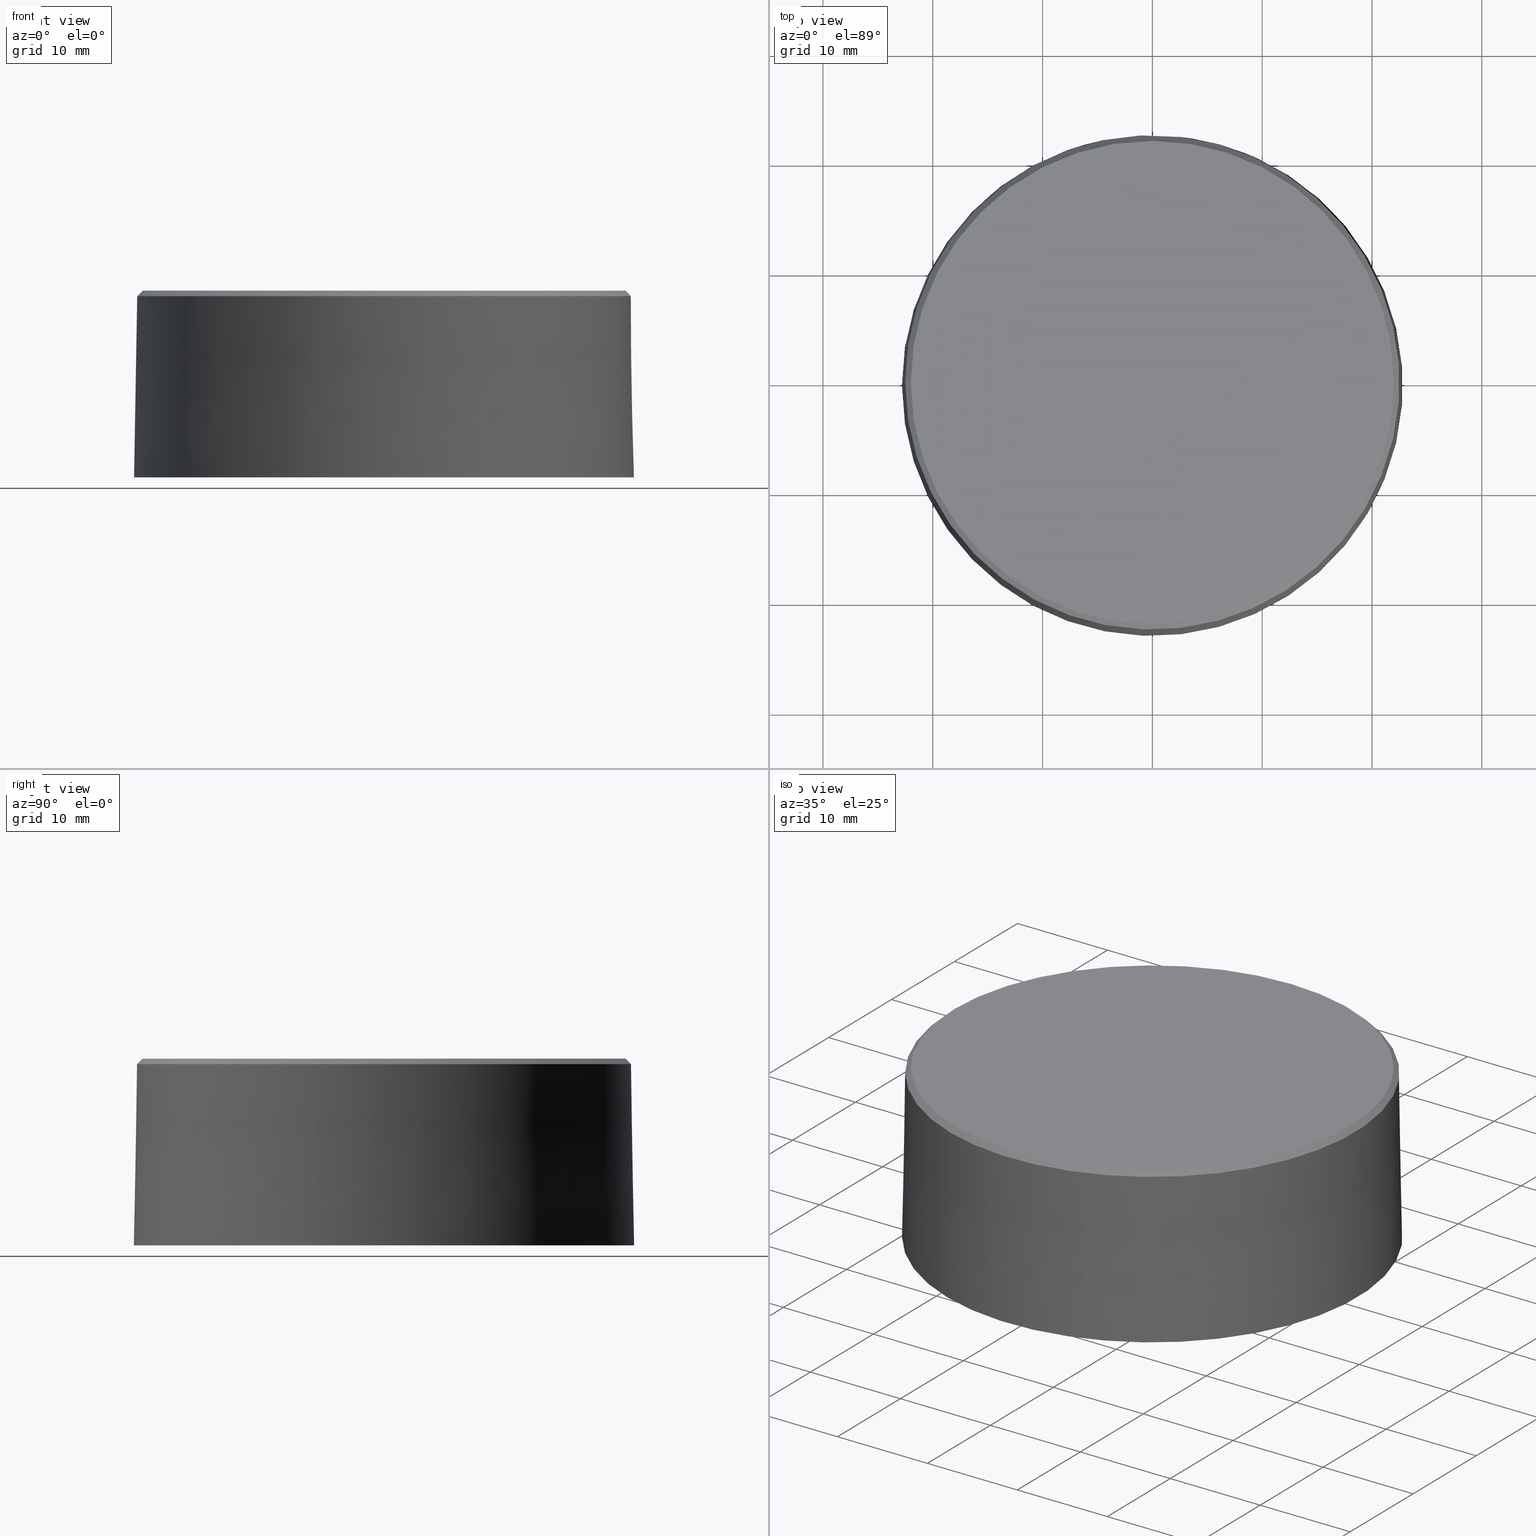
[diagram: canonical four-view strip — front | top / right | iso, engineering-drawing reading convention]
A machine part, canonical four-view strip (front | top / right | iso — engineering-drawing reading convention). The complete STEP part file that produces these views, byte-faithful:
ISO-10303-21;
HEADER;
FILE_DESCRIPTION (( 'STEP AP214' ),
    '1' );
FILE_NAME ('CS60-WINDOW.STEP',
    '2025-02-14T11:38:08',
    ( '' ),
    ( '' ),
    'SwSTEP 2.0',
    'SolidWorks 2024',
    '' );
FILE_SCHEMA (( 'AUTOMOTIVE_DESIGN' ));
ENDSEC;

DATA;
#1 =( BOUNDED_CURVE ( )  B_SPLINE_CURVE ( 2, ( #75, #165, #553 ),
 .UNSPECIFIED., .F., .F. ) 
 B_SPLINE_CURVE_WITH_KNOTS ( ( 3, 3 ),
 ( 0.000000000000000000, 0.1004093562034889947 ),
 .UNSPECIFIED. ) 
 CURVE ( )  GEOMETRIC_REPRESENTATION_ITEM ( )  RATIONAL_B_SPLINE_CURVE ( ( 1.000000000000000000, 1.000004597456350064, 1.000005502886829989 ) ) 
 REPRESENTATION_ITEM ( '' )  );
#2 = CARTESIAN_POINT ( 'NONE',  ( 0.000000000000000000, 0.000000000000000000, 0.5905511811023621549 ) ) ;
#3 = ORIENTED_EDGE ( 'NONE', *, *, #387, .T. ) ;
#4 = PRESENTATION_STYLE_ASSIGNMENT (( #262 ) ) ;
#5 = DIRECTION ( 'NONE',  ( 0.000000000000000000, 0.000000000000000000, -1.000000000000000000 ) ) ;
#6 = MANIFOLD_SOLID_BREP ( 'XXX.XXXX.XXX-1-solid1', #288 ) ;
#7 = ORIENTED_EDGE ( 'NONE', *, *, #17, .F. ) ;
#8 = CARTESIAN_POINT ( 'NONE',  ( -0.8975092954243976129, 0.000000000000000000, 0.000000000000000000 ) ) ;
#9 =( GEOMETRIC_REPRESENTATION_CONTEXT ( 3 ) GLOBAL_UNCERTAINTY_ASSIGNED_CONTEXT ( ( #193 ) ) GLOBAL_UNIT_ASSIGNED_CONTEXT ( ( #506, #735, #722 ) ) REPRESENTATION_CONTEXT ( 'NONE', 'WORKASPACE' ) );
#10 = CONICAL_SURFACE ( 'NONE', #55, 0.8369079870989724057, 0.7941248096574117232 ) ;
#11 = AXIS2_PLACEMENT_3D ( 'NONE', #770, #904, #677 ) ;
#12 = FACE_OUTER_BOUND ( 'NONE', #779, .T. ) ;
#13 = EDGE_CURVE ( 'NONE', #966, #682, #659, .T. ) ;
#14 = FACE_BOUND ( 'NONE', #385, .T. ) ;
#15 = ORIENTED_EDGE ( 'NONE', *, *, #289, .F. ) ;
#16 = VERTEX_POINT ( 'NONE', #325 ) ;
#17 = EDGE_CURVE ( 'NONE', #545, #545, #121, .T. ) ;
#18 = CARTESIAN_POINT ( 'NONE',  ( 0.000000000000000000, 0.000000000000000000, 0.5551181102362204856 ) ) ;
#19 = DIRECTION ( 'NONE',  ( 0.000000000000000000, 0.000000000000000000, 1.000000000000000000 ) ) ;
#20 = DIRECTION ( 'NONE',  ( 1.000000000000000000, 0.000000000000000000, 0.000000000000000000 ) ) ;
#21 = ORIENTED_EDGE ( 'NONE', *, *, #232, .T. ) ;
#22 = CARTESIAN_POINT ( 'NONE',  ( -0.2066929133858267931, 0.000000000000000000, 0.4330708661417322913 ) ) ;
#23 = CARTESIAN_POINT ( 'NONE',  ( -0.2710133180470740144, 0.1574803149606298913, 0.5037418801071139596 ) ) ;
#24 = DIRECTION ( 'NONE',  ( 1.000000000000000000, 0.000000000000000000, 0.000000000000000000 ) ) ;
#25 = PRODUCT_DEFINITION ( 'UNKNOWN', '', #240, #422 ) ;
#26 = VERTEX_POINT ( 'NONE', #192 ) ;
#27 = VERTEX_POINT ( 'NONE', #334 ) ;
#28 = CONICAL_SURFACE ( 'NONE', #85, 0.3149606299212598381, 0.01745329251994153993 ) ;
#29 = AXIS2_PLACEMENT_3D ( 'NONE', #164, #853, #231 ) ;
#30 = DIRECTION ( 'NONE',  ( 0.000000000000000000, 0.000000000000000000, -1.000000000000000000 ) ) ;
#31 = DIRECTION ( 'NONE',  ( 0.000000000000000000, 0.000000000000000000, 1.000000000000000000 ) ) ;
#32 = CARTESIAN_POINT ( 'NONE',  ( 0.000000000000000000, 0.000000000000000000, 0.4527559055118110520 ) ) ;
#33 = DIRECTION ( 'NONE',  ( -1.000000000000000000, 0.000000000000000000, 0.000000000000000000 ) ) ;
#34 = VERTEX_POINT ( 'NONE', #507 ) ;
#35 = ORIENTED_EDGE ( 'NONE', *, *, #949, .F. ) ;
#36 = CARTESIAN_POINT ( 'NONE',  ( 0.000000000000000000, 0.000000000000000000, 0.4921259842519685179 ) ) ;
#37 = FACE_OUTER_BOUND ( 'NONE', #319, .T. ) ;
#38 = ORIENTED_EDGE ( 'NONE', *, *, #580, .F. ) ;
#39 = CARTESIAN_POINT ( 'NONE',  ( 1.321954902902378005E-17, 0.000000000000000000, 0.4921259842519685179 ) ) ;
#40 = CARTESIAN_POINT ( 'NONE',  ( 0.2261638837219696885, -0.1574803149606299191, 0.4921259842519685179 ) ) ;
#41 = COLOUR_RGB ( '',0.7921568627450980005, 0.8196078431372548767, 0.9333333333333333481 ) ;
#42 = EDGE_CURVE ( 'NONE', #341, #616, #357, .T. ) ;
#43 = EDGE_LOOP ( 'NONE', ( #307 ) ) ;
#44 = ORIENTED_EDGE ( 'NONE', *, *, #62, .F. ) ;
#45 = DIRECTION ( 'NONE',  ( 0.000000000000000000, 0.000000000000000000, 1.000000000000000000 ) ) ;
#46 = CARTESIAN_POINT ( 'NONE',  ( -3.494217383302126599E-17, 0.000000000000000000, 0.000000000000000000 ) ) ;
#47 = FACE_OUTER_BOUND ( 'NONE', #760, .T. ) ;
#48 = VERTEX_POINT ( 'NONE', #421 ) ;
#49 = CARTESIAN_POINT ( 'NONE',  ( 0.2109612562328114227, 0.1574803149606299191, 0.5551181102362204856 ) ) ;
#50 = DIRECTION ( 'NONE',  ( -1.000000000000000000, 1.110223024625159992E-16, 0.000000000000000000 ) ) ;
#51 = EDGE_LOOP ( 'NONE', ( #855 ) ) ;
#52 = DIRECTION ( 'NONE',  ( 1.000000000000000000, 0.000000000000000000, 0.000000000000000000 ) ) ;
#53 = CLOSED_SHELL ( 'NONE', ( #145, #823, #787, #891, #818, #157 ) ) ;
#54 = LINE ( 'NONE', #370, #477 ) ;
#55 = AXIS2_PLACEMENT_3D ( 'NONE', #870, #794, #484 ) ;
#56 = VERTEX_POINT ( 'NONE', #651 ) ;
#57 = DIRECTION ( 'NONE',  ( 1.000000000000000000, 0.000000000000000000, 0.000000000000000000 ) ) ;
#58 = CARTESIAN_POINT ( 'NONE',  ( 0.000000000000000000, 5.426228247570039227E-17, 0.6496092973394409498 ) ) ;
#59 = VERTEX_POINT ( 'NONE', #958 ) ;
#60 = DIRECTION ( 'NONE',  ( 0.000000000000000000, 0.000000000000000000, -1.000000000000000000 ) ) ;
#61 = DIRECTION ( 'NONE',  ( 0.000000000000000000, 0.000000000000000000, -1.000000000000000000 ) ) ;
#62 = EDGE_CURVE ( 'NONE', #514, #689, #93, .T. ) ;
#63 = EDGE_LOOP ( 'NONE', ( #72 ) ) ;
#64 = FACE_OUTER_BOUND ( 'NONE', #465, .T. ) ;
#65 = CARTESIAN_POINT ( 'NONE',  ( 0.000000000000000000, 0.000000000000000000, 0.5905511811023621549 ) ) ;
#66 = ADVANCED_FACE ( 'NONE', ( #47 ), #916, .F. ) ;
#67 = ORIENTED_EDGE ( 'NONE', *, *, #967, .T. ) ;
#68 = AXIS2_PLACEMENT_3D ( 'NONE', #526, #360, #291 ) ;
#69 = CONICAL_SURFACE ( 'NONE', #459, 0.8761560276224134025, 0.7941248096574209381 ) ;
#70 = DIRECTION ( 'NONE',  ( 0.000000000000000000, 0.000000000000000000, -1.000000000000000000 ) ) ;
#71 = FACE_BOUND ( 'NONE', #367, .T. ) ;
#72 = ORIENTED_EDGE ( 'NONE', *, *, #843, .F. ) ;
#73 = CARTESIAN_POINT ( 'NONE',  ( 0.000000000000000000, 0.000000000000000000, 0.4921259842519685179 ) ) ;
#74 = PLANE ( 'NONE',  #456 ) ;
#75 = CARTESIAN_POINT ( 'NONE',  ( 0.1783666889560700797, -0.1574803149606299191, 0.4921259842519685179 ) ) ;
#76 = ORIENTED_EDGE ( 'NONE', *, *, #476, .F. ) ;
#77 = VERTEX_POINT ( 'NONE', #22 ) ;
#78 =( NAMED_UNIT ( * ) PLANE_ANGLE_UNIT ( ) SI_UNIT ( $, .RADIAN. ) );
#79 = EDGE_CURVE ( 'NONE', #872, #872, #719, .T. ) ;
#80 = FACE_BOUND ( 'NONE', #346, .T. ) ;
#81 = CARTESIAN_POINT ( 'NONE',  ( 0.2039058249667992095, 0.1574803149606299191, 0.4527559055118110520 ) ) ;
#82 = EDGE_CURVE ( 'NONE', #942, #942, #271, .T. ) ;
#83 = ORIENTED_EDGE ( 'NONE', *, *, #426, .T. ) ;
#84 = CARTESIAN_POINT ( 'NONE',  ( -0.3129921259842520231, 0.000000000000000000, 0.4527559055118110520 ) ) ;
#85 = AXIS2_PLACEMENT_3D ( 'NONE', #248, #691, #618 ) ;
#86 = AXIS2_PLACEMENT_3D ( 'NONE', #552, #407, #857 ) ;
#87 = AXIS2_PLACEMENT_3D ( 'NONE', #589, #952, #195 ) ;
#88 = CARTESIAN_POINT ( 'NONE',  ( 0.000000000000000000, 0.000000000000000000, 0.5551181102362204856 ) ) ;
#89 = DIRECTION ( 'NONE',  ( -0.000000000000000000, 1.000000000000000000, 0.000000000000000000 ) ) ;
#90 = ORIENTED_EDGE ( 'NONE', *, *, #771, .F. ) ;
#91 =( CONVERSION_BASED_UNIT ( 'INCH', #386 ) LENGTH_UNIT ( ) NAMED_UNIT ( #202 ) );
#92 =( CONVERSION_BASED_UNIT ( 'INCH', #178 ) LENGTH_UNIT ( ) NAMED_UNIT ( #517 ) );
#93 =( BOUNDED_CURVE ( )  B_SPLINE_CURVE ( 2, ( #435, #427, #965 ),
 .UNSPECIFIED., .F., .T. ) 
 B_SPLINE_CURVE_WITH_KNOTS ( ( 3, 3 ),
 ( 0.1496580314546850088, 0.2500673876581739896 ),
 .UNSPECIFIED. ) 
 CURVE ( )  GEOMETRIC_REPRESENTATION_ITEM ( )  RATIONAL_B_SPLINE_CURVE ( ( 1.000005502886829989, 1.000004597456350064, 1.000000000000000000 ) ) 
 REPRESENTATION_ITEM ( '' )  );
#94 = FACE_BOUND ( 'NONE', #980, .T. ) ;
#95 = CARTESIAN_POINT ( 'NONE',  ( 0.000000000000000000, 0.000000000000000000, 0.6692913385826771977 ) ) ;
#96 = EDGE_LOOP ( 'NONE', ( #226 ) ) ;
#97 = CARTESIAN_POINT ( 'NONE',  ( 0.2362204724409449064, 0.000000000000000000, 0.5905511811023621549 ) ) ;
#98 = CARTESIAN_POINT ( 'NONE',  ( 0.1783666889560700797, 0.1574803149606299191, 0.4921259842519685179 ) ) ;
#99 = CARTESIAN_POINT ( 'NONE',  ( -0.2710133180470480907, -0.1574803149606298913, 0.5037418801058231033 ) ) ;
#100 = EDGE_LOOP ( 'NONE', ( #954 ) ) ;
#101 = EDGE_CURVE ( 'NONE', #616, #119, #973, .T. ) ;
#102 =( BOUNDED_CURVE ( )  B_SPLINE_CURVE ( 2, ( #946, #99, #389 ),
 .UNSPECIFIED., .F., .T. ) 
 B_SPLINE_CURVE_WITH_KNOTS ( ( 3, 3 ),
 ( 0.000000000000000000, 0.2594788765233660421 ),
 .UNSPECIFIED. ) 
 CURVE ( )  GEOMETRIC_REPRESENTATION_ITEM ( )  RATIONAL_B_SPLINE_CURVE ( ( 1.000000000000000000, 1.000008586743750039, 1.000006307027889951 ) ) 
 REPRESENTATION_ITEM ( '' )  );
#103 = VECTOR ( 'NONE', #815, 39.37007874015748143 ) ;
#104 =( NAMED_UNIT ( * ) SI_UNIT ( $, .STERADIAN. ) SOLID_ANGLE_UNIT ( ) );
#105 = AXIS2_PLACEMENT_3D ( 'NONE', #191, #806, #420 ) ;
#106 = CONICAL_SURFACE ( 'NONE', #237, 0.2379384906425413559, 0.01745329251994153993 ) ;
#107 = DIRECTION ( 'NONE',  ( 0.000000000000000000, 1.000000000000000000, 0.000000000000000000 ) ) ;
#108 =( LENGTH_UNIT ( ) NAMED_UNIT ( * ) SI_UNIT ( $, .METRE. ) );
#109 = ORIENTED_EDGE ( 'NONE', *, *, #530, .T. ) ;
#110 = FACE_OUTER_BOUND ( 'NONE', #489, .T. ) ;
#111 = PLANE ( 'NONE',  #588 ) ;
#112 = CARTESIAN_POINT ( 'NONE',  ( 0.2261638837219696885, -0.1574803149606299191, 0.5905511811023621549 ) ) ;
#113 = VERTEX_POINT ( 'NONE', #353 ) ;
#114 = ORIENTED_EDGE ( 'NONE', *, *, #289, .T. ) ;
#115 = DIRECTION ( 'NONE',  ( 0.000000000000000000, 1.000000000000000000, 0.000000000000000000 ) ) ;
#116 = EDGE_CURVE ( 'NONE', #867, #278, #765, .T. ) ;
#117 = CARTESIAN_POINT ( 'NONE',  ( 0.000000000000000000, 0.000000000000000000, 0.08661417322834646937 ) ) ;
#118 = PRODUCT_CONTEXT ( 'NONE', #247, 'mechanical' ) ;
#119 = VERTEX_POINT ( 'NONE', #374 ) ;
#120 = DIRECTION ( 'NONE',  ( 1.000000000000000000, 0.000000000000000000, 0.000000000000000000 ) ) ;
#121 = CIRCLE ( 'NONE', #816, 0.2066929133858267931 ) ;
#122 = DIRECTION ( 'NONE',  ( 0.000000000000000000, 0.000000000000000000, 1.000000000000000000 ) ) ;
#123 = VERTEX_POINT ( 'NONE', #675 ) ;
#124 = CIRCLE ( 'NONE', #432, 0.2657480314960630197 ) ;
#125 = SHAPE_DEFINITION_REPRESENTATION ( #491, #683 ) ;
#126 = ORIENTED_EDGE ( 'NONE', *, *, #488, .F. ) ;
#127 = DIRECTION ( 'NONE',  ( 1.000000000000000000, 0.000000000000000000, 0.000000000000000000 ) ) ;
#128 = SURFACE_SIDE_STYLE ('',( #568 ) ) ;
#129 = ADVANCED_FACE ( 'NONE', ( #905 ), #678, .F. ) ;
#130 = ORIENTED_EDGE ( 'NONE', *, *, #592, .F. ) ;
#131 = CARTESIAN_POINT ( 'NONE',  ( 0.4078116499335984191, 0.1574803149606299191, 0.3937007874015748254 ) ) ;
#132 = EDGE_CURVE ( 'NONE', #162, #162, #736, .T. ) ;
#133 = DIRECTION ( 'NONE',  ( -1.000000000000000000, 1.110223024625159992E-16, 0.000000000000000000 ) ) ;
#134 = ORIENTED_EDGE ( 'NONE', *, *, #301, .T. ) ;
#135 = DIRECTION ( 'NONE',  ( 0.000000000000000000, 0.000000000000000000, 1.000000000000000000 ) ) ;
#136 = AXIS2_PLACEMENT_3D ( 'NONE', #225, #446, #979 ) ;
#137 = DIRECTION ( 'NONE',  ( 1.000000000000000000, 0.000000000000000000, 0.000000000000000000 ) ) ;
#138 = AXIS2_PLACEMENT_3D ( 'NONE', #95, #408, #890 ) ;
#139 = ORIENTED_EDGE ( 'NONE', *, *, #875, .F. ) ;
#140 = AXIS2_PLACEMENT_3D ( 'NONE', #462, #135, #598 ) ;
#141 = LINE ( 'NONE', #758, #461 ) ;
#142 = CARTESIAN_POINT ( 'NONE',  ( -0.2720495056005799439, 0.1574803149606299191, 0.5551181102362204856 ) ) ;
#143 = EDGE_LOOP ( 'NONE', ( #286, #67, #282, #697 ) ) ;
#144 = CARTESIAN_POINT ( 'NONE',  ( 0.000000000000000000, -5.063263564245275507E-17, 0.01968204124323617854 ) ) ;
#145 = ADVANCED_FACE ( 'NONE', ( #299, #756 ), #839, .T. ) ;
#146 = CARTESIAN_POINT ( 'NONE',  ( 0.000000000000000000, 0.000000000000000000, 0.03937007874015747977 ) ) ;
#147 = ORIENTED_EDGE ( 'NONE', *, *, #488, .T. ) ;
#148 = EDGE_CURVE ( 'NONE', #689, #966, #535, .T. ) ;
#149 = DIRECTION ( 'NONE',  ( 0.000000000000000000, 0.000000000000000000, -1.000000000000000000 ) ) ;
#150 = DIRECTION ( 'NONE',  ( 0.000000000000000000, 0.000000000000000000, -1.000000000000000000 ) ) ;
#151 = ORIENTED_EDGE ( 'NONE', *, *, #978, .F. ) ;
#152 = CIRCLE ( 'NONE', #336, 0.3125554044390252417 ) ;
#153 = CARTESIAN_POINT ( 'NONE',  ( 2.055619658362122294E-17, 0.000000000000000000, 0.4527559055118110520 ) ) ;
#154 = CIRCLE ( 'NONE', #525, 0.3129921259842520231 ) ;
#155 = DIRECTION ( 'NONE',  ( -1.000000000000000000, 0.000000000000000000, 0.000000000000000000 ) ) ;
#156 = EDGE_LOOP ( 'NONE', ( #478, #859, #877, #254 ) ) ;
#157 = ADVANCED_FACE ( 'NONE', ( #611, #842 ), #670, .F. ) ;
#158 = VERTEX_POINT ( 'NONE', #466 ) ;
#159 = CARTESIAN_POINT ( 'NONE',  ( -0.2699830202882192998, 0.1574803149606299191, 0.4527559055118110520 ) ) ;
#160 = LINE ( 'NONE', #81, #495 ) ;
#161 = EDGE_LOOP ( 'NONE', ( #485 ) ) ;
#162 = VERTEX_POINT ( 'NONE', #710 ) ;
#163 = CARTESIAN_POINT ( 'NONE',  ( -0.1783666889560700797, -0.1574803149606299191, 0.4921259842519685179 ) ) ;
#164 = CARTESIAN_POINT ( 'NONE',  ( 0.000000000000000000, 0.000000000000000000, 0.5551181102362204856 ) ) ;
#165 = CARTESIAN_POINT ( 'NONE',  ( 0.1788238775080272513, -0.1574803149606299191, 0.4724913449862601089 ) ) ;
#166 = ORIENTED_EDGE ( 'NONE', *, *, #132, .F. ) ;
#167 = CARTESIAN_POINT ( 'NONE',  ( 0.8503937007874016185, 0.000000000000000000, 0.03937007874015747977 ) ) ;
#168 = AXIS2_PLACEMENT_3D ( 'NONE', #2, #150, #243 ) ;
#169 = CONICAL_SURFACE ( 'NONE', #738, 0.8169291338582678197, 0.01745329251994153993 ) ;
#170 = CARTESIAN_POINT ( 'NONE',  ( -0.2261638837219696885, 0.1574803149606299191, 0.5905511811023621549 ) ) ;
#171 = AXIS2_PLACEMENT_3D ( 'NONE', #18, #326, #627 ) ;
#172 = EDGE_CURVE ( 'NONE', #481, #481, #912, .T. ) ;
#173 = CARTESIAN_POINT ( 'NONE',  ( -0.3795899248695508432, -0.1574803149606299191, 0.3937007874015748254 ) ) ;
#174 = DIRECTION ( 'NONE',  ( 1.000000000000000000, 0.000000000000000000, 0.000000000000000000 ) ) ;
#175 = ORIENTED_EDGE ( 'NONE', *, *, #534, .F. ) ;
#176 = EDGE_CURVE ( 'NONE', #16, #16, #509, .T. ) ;
#177 = VERTEX_POINT ( 'NONE', #716 ) ;
#178 = LENGTH_MEASURE_WITH_UNIT ( LENGTH_MEASURE( 0.02539999999999999897 ), #241 );
#179 = EDGE_CURVE ( 'NONE', #59, #460, #54, .T. ) ;
#180 = DIRECTION ( 'NONE',  ( -1.000000000000000000, 1.110223024625159992E-16, 0.000000000000000000 ) ) ;
#181 = EDGE_LOOP ( 'NONE', ( #83 ) ) ;
#182 = CARTESIAN_POINT ( 'NONE',  ( 0.8265500357872047621, 0.000000000000000000, 0.03937007874015747977 ) ) ;
#183 = EDGE_CURVE ( 'NONE', #788, #788, #457, .T. ) ;
#184 = CARTESIAN_POINT ( 'NONE',  ( 0.000000000000000000, 0.000000000000000000, 0.4921259842519685179 ) ) ;
#185 = EDGE_LOOP ( 'NONE', ( #737 ) ) ;
#186 =( NAMED_UNIT ( * ) PLANE_ANGLE_UNIT ( ) SI_UNIT ( $, .RADIAN. ) );
#187 = AXIS2_PLACEMENT_3D ( 'NONE', #828, #310, #910 ) ;
#188 = CARTESIAN_POINT ( 'NONE',  ( 0.2699830202882192998, 0.1574803149606299191, 0.4527559055118110520 ) ) ;
#189 = AXIS2_PLACEMENT_3D ( 'NONE', #117, #874, #643 ) ;
#190 = AXIS2_PLACEMENT_3D ( 'NONE', #994, #523, #312 ) ;
#191 = CARTESIAN_POINT ( 'NONE',  ( 0.000000000000000000, 0.000000000000000000, 0.08661417322834646937 ) ) ;
#192 = CARTESIAN_POINT ( 'NONE',  ( 0.2720495056005799439, 0.1574803149606299191, 0.5551181102362204856 ) ) ;
#193 = UNCERTAINTY_MEASURE_WITH_UNIT (LENGTH_MEASURE( 1.000000000000000082E-05 ), #506, 'distance_accuracy_value', 'NONE');
#194 = DIRECTION ( 'NONE',  ( 0.000000000000000000, 0.000000000000000000, 1.000000000000000000 ) ) ;
#195 = DIRECTION ( 'NONE',  ( -1.000000000000000000, 0.000000000000000000, 0.000000000000000000 ) ) ;
#196 = FILL_AREA_STYLE_COLOUR ( '', #672 ) ;
#197 = VERTEX_POINT ( 'NONE', #836 ) ;
#198 = VERTEX_POINT ( 'NONE', #142 ) ;
#199 = PLANE ( 'NONE',  #834 ) ;
#200 = CARTESIAN_POINT ( 'NONE',  ( 0.000000000000000000, 0.000000000000000000, 0.5905511811023621549 ) ) ;
#201 = EDGE_LOOP ( 'NONE', ( #114, #532, #763, #911 ) ) ;
#202 = DIMENSIONAL_EXPONENTS ( 1.000000000000000000, 0.000000000000000000, 0.000000000000000000, 0.000000000000000000, 0.000000000000000000, 0.000000000000000000, 0.000000000000000000 ) ;
#203 = CARTESIAN_POINT ( 'NONE',  ( -1.980481191969228494E-17, 0.000000000000000000, 0.4330708661417322913 ) ) ;
#204 = AXIS2_PLACEMENT_3D ( 'NONE', #759, #61, #825 ) ;
#205 = ADVANCED_FACE ( 'NONE', ( #449, #593 ), #752, .F. ) ;
#206 = AXIS2_PLACEMENT_3D ( 'NONE', #773, #89, #20 ) ;
#207 = MECHANICAL_DESIGN_GEOMETRIC_PRESENTATION_REPRESENTATION (  '', ( #511 ), #258 ) ;
#208 = EDGE_LOOP ( 'NONE', ( #21 ) ) ;
#209 = DIRECTION ( 'NONE',  ( -0.000000000000000000, 1.000000000000000000, 0.000000000000000000 ) ) ;
#210 = EDGE_CURVE ( 'NONE', #278, #679, #242, .T. ) ;
#211 = DIRECTION ( 'NONE',  ( 1.000000000000000000, 0.000000000000000000, 0.000000000000000000 ) ) ;
#212 = ORIENTED_EDGE ( 'NONE', *, *, #183, .F. ) ;
#213 = FACE_OUTER_BOUND ( 'NONE', #663, .T. ) ;
#214 = DIRECTION ( 'NONE',  ( -1.000000000000000000, 0.000000000000000000, 0.000000000000000000 ) ) ;
#215 = ORIENTED_EDGE ( 'NONE', *, *, #434, .T. ) ;
#216 = CARTESIAN_POINT ( 'NONE',  ( 0.2261638837219696885, 0.1574803149606299191, 0.4921259842519685179 ) ) ;
#217 = AXIS2_PLACEMENT_3D ( 'NONE', #384, #321, #316 ) ;
#218 = DIRECTION ( 'NONE',  ( 0.000000000000000000, 0.000000000000000000, 1.000000000000000000 ) ) ;
#219 = CIRCLE ( 'NONE', #574, 0.2755905511811023723 ) ;
#220 = ORIENTED_EDGE ( 'NONE', *, *, #434, .F. ) ;
#221 = AXIS2_PLACEMENT_3D ( 'NONE', #144, #451, #761 ) ;
#222 = DIMENSIONAL_EXPONENTS ( 1.000000000000000000, 0.000000000000000000, 0.000000000000000000, 0.000000000000000000, 0.000000000000000000, 0.000000000000000000, 0.000000000000000000 ) ;
#223 = CARTESIAN_POINT ( 'NONE',  ( 0.000000000000000000, 0.000000000000000000, 0.4921259842519685179 ) ) ;
#224 = EDGE_CURVE ( 'NONE', #158, #158, #318, .T. ) ;
#225 = CARTESIAN_POINT ( 'NONE',  ( 0.000000000000000000, 0.000000000000000000, 0.4527559055118110520 ) ) ;
#226 = ORIENTED_EDGE ( 'NONE', *, *, #82, .T. ) ;
#227 = LINE ( 'NONE', #238, #766 ) ;
#228 = CARTESIAN_POINT ( 'NONE',  ( 0.000000000000000000, 0.000000000000000000, 0.4921259842519685179 ) ) ;
#229 = ORIENTED_EDGE ( 'NONE', *, *, #314, .F. ) ;
#230 = DIRECTION ( 'NONE',  ( -1.000000000000000000, 0.000000000000000000, 0.000000000000000000 ) ) ;
#231 = DIRECTION ( 'NONE',  ( 0.000000000000000000, 1.000000000000000000, 0.000000000000000000 ) ) ;
#232 = EDGE_CURVE ( 'NONE', #77, #77, #603, .T. ) ;
#233 = DIRECTION ( 'NONE',  ( -1.000000000000000000, 0.000000000000000000, 0.000000000000000000 ) ) ;
#234 = CLOSED_SHELL ( 'NONE', ( #601, #239, #708, #473, #582, #896, #566, #610, #430, #919, #323, #642, #205, #729, #814, #820, #681, #769, #382, #268, #520, #963, #66, #285, #718, #923, #129 ) ) ;
#235 = ORIENTED_EDGE ( 'NONE', *, *, #179, .T. ) ;
#236 = AXIS2_PLACEMENT_3D ( 'NONE', #403, #412, #558 ) ;
#237 = AXIS2_PLACEMENT_3D ( 'NONE', #36, #576, #115 ) ;
#238 = CARTESIAN_POINT ( 'NONE',  ( 0.2039058249667992095, 0.1574803149606299191, 0.4527559055118110520 ) ) ;
#239 = ADVANCED_FACE ( 'NONE', ( #71, #563 ), #468, .F. ) ;
#240 = PRODUCT_DEFINITION_FORMATION_WITH_SPECIFIED_SOURCE ( 'ANY', '', #634, .NOT_KNOWN. ) ;
#241 =( LENGTH_UNIT ( ) NAMED_UNIT ( * ) SI_UNIT ( $, .METRE. ) );
#242 =( BOUNDED_CURVE ( )  B_SPLINE_CURVE ( 2, ( #986, #305, #606 ),
 .UNSPECIFIED., .F., .F. ) 
 B_SPLINE_CURVE_WITH_KNOTS ( ( 3, 3 ),
 ( 0.1496580314535909950, 0.2500673876581739896 ),
 .UNSPECIFIED. ) 
 CURVE ( )  GEOMETRIC_REPRESENTATION_ITEM ( )  RATIONAL_B_SPLINE_CURVE ( ( 1.000005502865900064, 1.000004597438870046, 1.000000000000000000 ) ) 
 REPRESENTATION_ITEM ( '' )  );
#243 = DIRECTION ( 'NONE',  ( 1.000000000000000000, 0.000000000000000000, 0.000000000000000000 ) ) ;
#244 = DIRECTION ( 'NONE',  ( 0.000000000000000000, 0.000000000000000000, 1.000000000000000000 ) ) ;
#245 = ORIENTED_EDGE ( 'NONE', *, *, #301, .F. ) ;
#246 = VERTEX_POINT ( 'NONE', #933 ) ;
#247 = APPLICATION_CONTEXT ( 'automotive_design' ) ;
#248 = CARTESIAN_POINT ( 'NONE',  ( 0.000000000000000000, 0.000000000000000000, 0.5905511811023621549 ) ) ;
#249 = CARTESIAN_POINT ( 'NONE',  ( 0.000000000000000000, 0.000000000000000000, 0.4527559055118110520 ) ) ;
#250 = ORIENTED_EDGE ( 'NONE', *, *, #426, .F. ) ;
#251 = LINE ( 'NONE', #170, #496 ) ;
#252 = CARTESIAN_POINT ( 'NONE',  ( -0.1827395311687634027, -0.1574803149606299191, 0.5551181102362204856 ) ) ;
#253 = FACE_OUTER_BOUND ( 'NONE', #638, .T. ) ;
#254 = ORIENTED_EDGE ( 'NONE', *, *, #406, .T. ) ;
#255 = VERTEX_POINT ( 'NONE', #868 ) ;
#256 = CIRCLE ( 'NONE', #236, 0.2066929133858267931 ) ;
#257 = EDGE_CURVE ( 'NONE', #936, #198, #373, .T. ) ;
#258 =( GEOMETRIC_REPRESENTATION_CONTEXT ( 3 ) GLOBAL_UNCERTAINTY_ASSIGNED_CONTEXT ( ( #645 ) ) GLOBAL_UNIT_ASSIGNED_CONTEXT ( ( #91, #550, #860 ) ) REPRESENTATION_CONTEXT ( 'NONE', 'WORKASPACE' ) );
#259 = DIRECTION ( 'NONE',  ( 1.000000000000000000, 0.000000000000000000, 0.000000000000000000 ) ) ;
#260 = DIRECTION ( 'NONE',  ( 0.000000000000000000, 0.000000000000000000, -1.000000000000000000 ) ) ;
#261 = ORIENTED_EDGE ( 'NONE', *, *, #79, .F. ) ;
#262 = SURFACE_STYLE_USAGE ( .BOTH. , #631 ) ;
#263 = SURFACE_STYLE_FILL_AREA ( #502 ) ;
#264 = FACE_OUTER_BOUND ( 'NONE', #161, .T. ) ;
#265 = EDGE_LOOP ( 'NONE', ( #333 ) ) ;
#266 = CARTESIAN_POINT ( 'NONE',  ( 0.2720495056005799439, 0.1574803149606299191, 0.5551181102362204856 ) ) ;
#267 = FACE_BOUND ( 'NONE', #882, .T. ) ;
#268 = ADVANCED_FACE ( 'NONE', ( #945 ), #74, .F. ) ;
#269 = ORIENTED_EDGE ( 'NONE', *, *, #79, .T. ) ;
#270 = ADVANCED_FACE ( 'NONE', ( #694, #331 ), #939, .F. ) ;
#271 = CIRCLE ( 'NONE', #685, 0.8265500357872047621 ) ;
#272 = PLANE ( 'NONE',  #561 ) ;
#273 = CIRCLE ( 'NONE', #590, 0.2386256979231795305 ) ;
#274 = CONICAL_SURFACE ( 'NONE', #723, 0.8169291338582678197, 0.01745329251994153993 ) ;
#275 = DIRECTION ( 'NONE',  ( 1.000000000000000000, 0.000000000000000000, 0.000000000000000000 ) ) ;
#276 = EDGE_LOOP ( 'NONE', ( #821 ) ) ;
#277 = UNCERTAINTY_MEASURE_WITH_UNIT (LENGTH_MEASURE( 1.000000000000000082E-05 ), #960, 'distance_accuracy_value', 'NONE');
#278 = VERTEX_POINT ( 'NONE', #783 ) ;
#279 = LINE ( 'NONE', #49, #543 ) ;
#280 = FACE_BOUND ( 'NONE', #265, .T. ) ;
#281 = ORIENTED_EDGE ( 'NONE', *, *, #906, .F. ) ;
#282 = ORIENTED_EDGE ( 'NONE', *, *, #13, .T. ) ;
#283 = FACE_BOUND ( 'NONE', #208, .T. ) ;
#284 = ADVANCED_FACE ( 'NONE', ( #547, #767 ), #541, .F. ) ;
#285 = ADVANCED_FACE ( 'NONE', ( #614, #80 ), #28, .T. ) ;
#286 = ORIENTED_EDGE ( 'NONE', *, *, #696, .T. ) ;
#287 = CYLINDRICAL_SURFACE ( 'NONE', #674, 0.2755905511811023723 ) ;
#288 = CLOSED_SHELL ( 'NONE', ( #833 ) ) ;
#289 = EDGE_CURVE ( 'NONE', #197, #48, #635, .T. ) ;
#290 = AXIS2_PLACEMENT_3D ( 'NONE', #184, #338, #107 ) ;
#291 = DIRECTION ( 'NONE',  ( -1.000000000000000000, 0.000000000000000000, 0.000000000000000000 ) ) ;
#292 = DIMENSIONAL_EXPONENTS ( 1.000000000000000000, 0.000000000000000000, 0.000000000000000000, 0.000000000000000000, 0.000000000000000000, 0.000000000000000000, 0.000000000000000000 ) ;
#293 = EDGE_CURVE ( 'NONE', #391, #391, #347, .T. ) ;
#294 = ORIENTED_EDGE ( 'NONE', *, *, #562, .T. ) ;
#295 = CYLINDRICAL_SURFACE ( 'NONE', #883, 0.2066929133858267931 ) ;
#296 = DIRECTION ( 'NONE',  ( -1.000000000000000000, 0.000000000000000000, 0.000000000000000000 ) ) ;
#297 = ORIENTED_EDGE ( 'NONE', *, *, #172, .T. ) ;
#298 = DIRECTION ( 'NONE',  ( 0.000000000000000000, 1.000000000000000000, 0.000000000000000000 ) ) ;
#299 = FACE_BOUND ( 'NONE', #100, .T. ) ;
#300 = FACE_OUTER_BOUND ( 'NONE', #450, .T. ) ;
#301 = EDGE_CURVE ( 'NONE', #123, #341, #313, .T. ) ;
#302 = ORIENTED_EDGE ( 'NONE', *, *, #101, .T. ) ;
#303 = DIRECTION ( 'NONE',  ( 0.000000000000000000, 0.000000000000000000, 1.000000000000000000 ) ) ;
#304 = VECTOR ( 'NONE', #789, 39.37007874015748143 ) ;
#305 = CARTESIAN_POINT ( 'NONE',  ( -0.1788238775080156773, -0.1574803149606299191, 0.4724913449867514936 ) ) ;
#306 = CIRCLE ( 'NONE', #189, 0.8503937007874016185 ) ;
#307 = ORIENTED_EDGE ( 'NONE', *, *, #843, .T. ) ;
#308 = AXIS2_PLACEMENT_3D ( 'NONE', #376, #149, #368 ) ;
#309 = FACE_OUTER_BOUND ( 'NONE', #961, .T. ) ;
#310 = DIRECTION ( 'NONE',  ( 0.000000000000000000, 0.000000000000000000, 1.000000000000000000 ) ) ;
#311 = ORIENTED_EDGE ( 'NONE', *, *, #995, .T. ) ;
#312 = DIRECTION ( 'NONE',  ( 1.000000000000000000, 0.000000000000000000, 0.000000000000000000 ) ) ;
#313 = LINE ( 'NONE', #252, #304 ) ;
#314 = EDGE_CURVE ( 'NONE', #119, #59, #924, .T. ) ;
#315 = ORIENTED_EDGE ( 'NONE', *, *, #894, .T. ) ;
#316 = DIRECTION ( 'NONE',  ( -1.000000000000000000, 0.000000000000000000, 0.000000000000000000 ) ) ;
#317 = DIRECTION ( 'NONE',  ( 0.000000000000000000, 0.000000000000000000, 1.000000000000000000 ) ) ;
#318 = CIRCLE ( 'NONE', #29, 0.2368389589935196715 ) ;
#319 = EDGE_LOOP ( 'NONE', ( #151 ) ) ;
#320 = PRESENTATION_LAYER_ASSIGNMENT (  '', '', ( #479 ) ) ;
#321 = DIRECTION ( 'NONE',  ( 0.000000000000000000, 0.000000000000000000, -1.000000000000000000 ) ) ;
#322 = DIRECTION ( 'NONE',  ( -1.000000000000000000, 0.000000000000000000, 0.000000000000000000 ) ) ;
#323 = ADVANCED_FACE ( 'NONE', ( #12, #94 ), #397, .T. ) ;
#324 = ORIENTED_EDGE ( 'NONE', *, *, #530, .F. ) ;
#325 = CARTESIAN_POINT ( 'NONE',  ( -0.8861703229613621113, -6.065921084684207584E-32, 0.6496092973394409498 ) ) ;
#326 = DIRECTION ( 'NONE',  ( 0.000000000000000000, 0.000000000000000000, -1.000000000000000000 ) ) ;
#327 = DIRECTION ( 'NONE',  ( 1.000000000000000000, 0.000000000000000000, 0.000000000000000000 ) ) ;
#328 = DIRECTION ( 'NONE',  ( 0.000000000000000000, 0.000000000000000000, 1.000000000000000000 ) ) ;
#329 = EDGE_LOOP ( 'NONE', ( #38 ) ) ;
#330 = CARTESIAN_POINT ( 'NONE',  ( 0.8503937007874016185, 0.000000000000000000, 0.08661417322834646937 ) ) ;
#331 = FACE_OUTER_BOUND ( 'NONE', #51, .T. ) ;
#332 = CARTESIAN_POINT ( 'NONE',  ( -0.1897949624347755881, -0.1574803149606299191, 0.4527559055118110520 ) ) ;
#333 = ORIENTED_EDGE ( 'NONE', *, *, #82, .F. ) ;
#334 = CARTESIAN_POINT ( 'NONE',  ( 0.8169291338582678197, 0.000000000000000000, 0.5905511811023621549 ) ) ;
#335 = AXIS2_PLACEMENT_3D ( 'NONE', #628, #849, #155 ) ;
#336 = AXIS2_PLACEMENT_3D ( 'NONE', #619, #244, #542 ) ;
#337 =( CONVERSION_BASED_UNIT ( 'INCH', #556 ) LENGTH_UNIT ( ) NAMED_UNIT ( #428 ) );
#338 = DIRECTION ( 'NONE',  ( 0.000000000000000000, 0.000000000000000000, -1.000000000000000000 ) ) ;
#339 = ORIENTED_EDGE ( 'NONE', *, *, #632, .F. ) ;
#340 = DIRECTION ( 'NONE',  ( 0.000000000000000000, 0.000000000000000000, -1.000000000000000000 ) ) ;
#341 = VERTEX_POINT ( 'NONE', #401 ) ;
#342 = LENGTH_MEASURE_WITH_UNIT ( LENGTH_MEASURE( 0.02539999999999999897 ), #743 );
#343 = ORIENTED_EDGE ( 'NONE', *, *, #771, .T. ) ;
#344 = FACE_OUTER_BOUND ( 'NONE', #438, .T. ) ;
#345 = CARTESIAN_POINT ( 'NONE',  ( 0.8169291338582678197, 0.000000000000000000, 0.03937007874015747977 ) ) ;
#346 = EDGE_LOOP ( 'NONE', ( #147, #921, #895, #494, #903, #109, #3, #375 ) ) ;
#347 = CIRCLE ( 'NONE', #168, 0.2362204724409449064 ) ;
#348 = FACE_BOUND ( 'NONE', #600, .T. ) ;
#349 =( GEOMETRIC_REPRESENTATION_CONTEXT ( 3 ) GLOBAL_UNCERTAINTY_ASSIGNED_CONTEXT ( ( #513 ) ) GLOBAL_UNIT_ASSIGNED_CONTEXT ( ( #337, #797, #104 ) ) REPRESENTATION_CONTEXT ( 'NONE', 'WORKASPACE' ) );
#350 = AXIS2_PLACEMENT_3D ( 'NONE', #223, #684, #298 ) ;
#351 = CARTESIAN_POINT ( 'NONE',  ( -0.2699830202882192998, -0.1574803149606299191, 0.4527559055118110520 ) ) ;
#352 = ORIENTED_EDGE ( 'NONE', *, *, #537, .T. ) ;
#353 = CARTESIAN_POINT ( 'NONE',  ( 0.8268936917600235859, -2.578016460990788333E-31, 0.01968204124323617854 ) ) ;
#354 = ORIENTED_EDGE ( 'NONE', *, *, #669, .T. ) ;
#355 = PLANE ( 'NONE',  #591 ) ;
#356 = DIRECTION ( 'NONE',  ( 1.000000000000000000, 0.000000000000000000, 0.000000000000000000 ) ) ;
#357 = LINE ( 'NONE', #112, #637 ) ;
#358 = EDGE_LOOP ( 'NONE', ( #139 ) ) ;
#359 = EDGE_CURVE ( 'NONE', #682, #732, #989, .T. ) ;
#360 = DIRECTION ( 'NONE',  ( 0.000000000000000000, 0.000000000000000000, 1.000000000000000000 ) ) ;
#361 = ORIENTED_EDGE ( 'NONE', *, *, #13, .F. ) ;
#362 = DIRECTION ( 'NONE',  ( -1.000000000000000000, 1.110223024625159992E-16, 0.000000000000000000 ) ) ;
#363 = AXIS2_PLACEMENT_3D ( 'NONE', #713, #328, #24 ) ;
#364 = AXIS2_PLACEMENT_3D ( 'NONE', #203, #819, #127 ) ;
#365 = DIRECTION ( 'NONE',  ( 0.000000000000000000, 0.000000000000000000, -1.000000000000000000 ) ) ;
#366 =( GEOMETRIC_REPRESENTATION_CONTEXT ( 3 ) GLOBAL_UNCERTAINTY_ASSIGNED_CONTEXT ( ( #277 ) ) GLOBAL_UNIT_ASSIGNED_CONTEXT ( ( #960, #186, #662 ) ) REPRESENTATION_CONTEXT ( 'NONE', 'WORKASPACE' ) );
#367 = EDGE_LOOP ( 'NONE', ( #297 ) ) ;
#368 = DIRECTION ( 'NONE',  ( -0.007444053080138005561, 0.9999722926530215661, 0.000000000000000000 ) ) ;
#369 = EDGE_CURVE ( 'NONE', #198, #460, #524, .T. ) ;
#370 = CARTESIAN_POINT ( 'NONE',  ( -0.1827395311687634027, -0.1574803149606299191, 0.5551181102362204856 ) ) ;
#371 = ORIENTED_EDGE ( 'NONE', *, *, #224, .T. ) ;
#372 = DIRECTION ( 'NONE',  ( -1.224646799147350002E-16, -1.000000000000000000, 0.000000000000000000 ) ) ;
#373 =( BOUNDED_CURVE ( )  B_SPLINE_CURVE ( 2, ( #159, #23, #712 ),
 .UNSPECIFIED., .F., .F. ) 
 B_SPLINE_CURVE_WITH_KNOTS ( ( 3, 3 ),
 ( 0.1506047571753989789, 0.4100836336985340669 ),
 .UNSPECIFIED. ) 
 CURVE ( )  GEOMETRIC_REPRESENTATION_ITEM ( )  RATIONAL_B_SPLINE_CURVE ( ( 1.000006307008189932, 1.000008586716920167, 1.000000000000000000 ) ) 
 REPRESENTATION_ITEM ( '' )  );
#374 = CARTESIAN_POINT ( 'NONE',  ( -0.2261638837219696885, -0.1574803149606299191, 0.4921259842519685179 ) ) ;
#375 = ORIENTED_EDGE ( 'NONE', *, *, #804, .T. ) ;
#376 = CARTESIAN_POINT ( 'NONE',  ( 0.000000000000000000, 0.000000000000000000, 0.06069705733389764435 ) ) ;
#377 = AXIS2_PLACEMENT_3D ( 'NONE', #378, #902, #133 ) ;
#378 = CARTESIAN_POINT ( 'NONE',  ( -0.3795899248695508432, -0.1574803149606299191, 0.3937007874015748254 ) ) ;
#379 = AXIS2_PLACEMENT_3D ( 'NONE', #778, #469, #615 ) ;
#380 = ORIENTED_EDGE ( 'NONE', *, *, #632, .T. ) ;
#381 = AXIS2_PLACEMENT_3D ( 'NONE', #73, #673, #372 ) ;
#382 = ADVANCED_FACE ( 'NONE', ( #983, #300 ), #935, .F. ) ;
#383 = FACE_OUTER_BOUND ( 'NONE', #43, .T. ) ;
#384 = CARTESIAN_POINT ( 'NONE',  ( 0.000000000000000000, 0.000000000000000000, 0.5551181102362204856 ) ) ;
#385 = EDGE_LOOP ( 'NONE', ( #649 ) ) ;
#386 = LENGTH_MEASURE_WITH_UNIT ( LENGTH_MEASURE( 0.02539999999999999897 ), #775 );
#387 = EDGE_CURVE ( 'NONE', #123, #26, #654, .T. ) ;
#388 = EDGE_CURVE ( 'NONE', #709, #514, #273, .T. ) ;
#389 = CARTESIAN_POINT ( 'NONE',  ( -0.2699830202882192998, -0.1574803149606299191, 0.4527559055118110520 ) ) ;
#390 = ORIENTED_EDGE ( 'NONE', *, *, #656, .F. ) ;
#391 = VERTEX_POINT ( 'NONE', #97 ) ;
#392 = PRESENTATION_STYLE_ASSIGNMENT (( #551 ) ) ;
#393 = DIRECTION ( 'NONE',  ( -1.000000000000000000, 1.110223024625159992E-16, 0.000000000000000000 ) ) ;
#394 = DIRECTION ( 'NONE',  ( 1.000000000000000000, 0.000000000000000000, 0.000000000000000000 ) ) ;
#395 = VECTOR ( 'NONE', #137, 39.37007874015748143 ) ;
#396 = ORIENTED_EDGE ( 'NONE', *, *, #537, .F. ) ;
#397 = CONICAL_SURFACE ( 'NONE', #721, 0.8858267716535432879, 0.01745329251994153993 ) ;
#398 = CIRCLE ( 'NONE', #785, 0.8169291338582678197 ) ;
#399 = VERTEX_POINT ( 'NONE', #626 ) ;
#400 = FACE_OUTER_BOUND ( 'NONE', #63, .T. ) ;
#401 = CARTESIAN_POINT ( 'NONE',  ( 0.2261638837219696885, -0.1574803149606299191, 0.5551181102362204856 ) ) ;
#402 = EDGE_CURVE ( 'NONE', #404, #867, #858, .T. ) ;
#403 = CARTESIAN_POINT ( 'NONE',  ( 0.000000000000000000, 0.000000000000000000, 0.5551181102362204856 ) ) ;
#404 = VERTEX_POINT ( 'NONE', #636 ) ;
#405 = VERTEX_POINT ( 'NONE', #330 ) ;
#406 = EDGE_CURVE ( 'NONE', #56, #867, #1, .T. ) ;
#407 = DIRECTION ( 'NONE',  ( 0.000000000000000000, 0.000000000000000000, 1.000000000000000000 ) ) ;
#408 = DIRECTION ( 'NONE',  ( 0.000000000000000000, 0.000000000000000000, -1.000000000000000000 ) ) ;
#409 = EDGE_LOOP ( 'NONE', ( #840 ) ) ;
#410 = VERTEX_POINT ( 'NONE', #471 ) ;
#411 = CARTESIAN_POINT ( 'NONE',  ( -0.1783666889560700797, 0.1574803149606299191, 0.4921259842519685179 ) ) ;
#412 = DIRECTION ( 'NONE',  ( 0.000000000000000000, 0.000000000000000000, -1.000000000000000000 ) ) ;
#413 = ORIENTED_EDGE ( 'NONE', *, *, #453, .F. ) ;
#414 = PRESENTATION_LAYER_ASSIGNMENT (  '', '', ( #897 ) ) ;
#415 = AXIS2_PLACEMENT_3D ( 'NONE', #925, #695, #233 ) ;
#416 = EDGE_CURVE ( 'NONE', #460, #621, #102, .T. ) ;
#417 = SURFACE_STYLE_FILL_AREA ( #861 ) ;
#418 = PLANE ( 'NONE',  #975 ) ;
#419 = DIRECTION ( 'NONE',  ( 0.000000000000000000, 0.000000000000000000, -1.000000000000000000 ) ) ;
#420 = DIRECTION ( 'NONE',  ( 1.000000000000000000, 0.000000000000000000, 0.000000000000000000 ) ) ;
#421 = CARTESIAN_POINT ( 'NONE',  ( -0.1783666889560700797, 0.1574803149606299191, 0.4921259842519685179 ) ) ;
#422 = PRODUCT_DEFINITION_CONTEXT ( 'detailed design', #436, 'design' ) ;
#423 = EDGE_LOOP ( 'NONE', ( #76 ) ) ;
#424 = FACE_OUTER_BOUND ( 'NONE', #441, .T. ) ;
#425 = DIRECTION ( 'NONE',  ( -1.000000000000000000, 1.110223024625159992E-16, 0.000000000000000000 ) ) ;
#426 = EDGE_CURVE ( 'NONE', #698, #698, #800, .T. ) ;
#427 = CARTESIAN_POINT ( 'NONE',  ( 0.1788238775080272513, 0.1574803149606299191, 0.4724913449862601089 ) ) ;
#428 = DIMENSIONAL_EXPONENTS ( 1.000000000000000000, 0.000000000000000000, 0.000000000000000000, 0.000000000000000000, 0.000000000000000000, 0.000000000000000000, 0.000000000000000000 ) ;
#429 = EDGE_LOOP ( 'NONE', ( #518, #380, #951, #302 ) ) ;
#430 = ADVANCED_FACE ( 'NONE', ( #564, #14 ), #10, .F. ) ;
#431 = FACE_OUTER_BOUND ( 'NONE', #969, .T. ) ;
#432 = AXIS2_PLACEMENT_3D ( 'NONE', #745, #70, #455 ) ;
#433 = DIRECTION ( 'NONE',  ( 0.000000000000000000, 0.000000000000000000, -1.000000000000000000 ) ) ;
#434 = EDGE_CURVE ( 'NONE', #410, #410, #256, .T. ) ;
#435 = CARTESIAN_POINT ( 'NONE',  ( 0.1792823865002519668, 0.1574803149606299191, 0.4527559055118110520 ) ) ;
#436 = APPLICATION_CONTEXT ( 'automotive_design' ) ;
#437 = DIRECTION ( 'NONE',  ( 0.000000000000000000, 0.000000000000000000, 1.000000000000000000 ) ) ;
#438 = EDGE_LOOP ( 'NONE', ( #212 ) ) ;
#439 = FACE_OUTER_BOUND ( 'NONE', #584, .T. ) ;
#440 = DIRECTION ( 'NONE',  ( 0.000000000000000000, 0.000000000000000000, -1.000000000000000000 ) ) ;
#441 = EDGE_LOOP ( 'NONE', ( #311, #811, #594, #361, #607, #44 ) ) ;
#442 = CARTESIAN_POINT ( 'NONE',  ( 0.000000000000000000, 0.000000000000000000, 0.4921259842519685179 ) ) ;
#443 = AXIS2_PLACEMENT_3D ( 'NONE', #707, #5, #483 ) ;
#444 = CIRCLE ( 'NONE', #290, 0.2379384906425413559 ) ;
#445 = CIRCLE ( 'NONE', #350, 0.2379384906425413559 ) ;
#446 = DIRECTION ( 'NONE',  ( 0.000000000000000000, 0.000000000000000000, 1.000000000000000000 ) ) ;
#447 = ORIENTED_EDGE ( 'NONE', *, *, #534, .T. ) ;
#448 = FACE_BOUND ( 'NONE', #522, .T. ) ;
#449 = FACE_BOUND ( 'NONE', #744, .T. ) ;
#450 = EDGE_LOOP ( 'NONE', ( #512, #644, #844, #134, #339, #235, #565, #926 ) ) ;
#451 = DIRECTION ( 'NONE',  ( 0.000000000000000000, 0.000000000000000000, 1.000000000000000000 ) ) ;
#452 = DIRECTION ( 'NONE',  ( 0.000000000000000000, 1.000000000000000000, 0.000000000000000000 ) ) ;
#453 = EDGE_CURVE ( 'NONE', #246, #246, #700, .T. ) ;
#454 = ORIENTED_EDGE ( 'NONE', *, *, #176, .F. ) ;
#455 = DIRECTION ( 'NONE',  ( -1.000000000000000000, 0.000000000000000000, 0.000000000000000000 ) ) ;
#456 = AXIS2_PLACEMENT_3D ( 'NONE', #173, #777, #393 ) ;
#457 = CIRCLE ( 'NONE', #68, 0.3543307086614173040 ) ;
#458 = CARTESIAN_POINT ( 'NONE',  ( 0.000000000000000000, 0.000000000000000000, 0.6692913385826771977 ) ) ;
#459 = AXIS2_PLACEMENT_3D ( 'NONE', #665, #730, #571 ) ;
#460 = VERTEX_POINT ( 'NONE', #464 ) ;
#461 = VECTOR ( 'NONE', #613, 39.37007874015748143 ) ;
#462 = CARTESIAN_POINT ( 'NONE',  ( 0.000000000000000000, 0.000000000000000000, 0.5551181102362204856 ) ) ;
#463 = DIRECTION ( 'NONE',  ( 0.000000000000000000, 0.000000000000000000, 1.000000000000000000 ) ) ;
#464 = CARTESIAN_POINT ( 'NONE',  ( -0.2720495056005799439, -0.1574803149606299191, 0.5551181102362204856 ) ) ;
#465 = EDGE_LOOP ( 'NONE', ( #612 ) ) ;
#466 = CARTESIAN_POINT ( 'NONE',  ( 0.000000000000000000, 0.2368389589935196715, 0.5551181102362204856 ) ) ;
#467 = DIRECTION ( 'NONE',  ( 1.000000000000000000, 0.000000000000000000, 0.000000000000000000 ) ) ;
#468 = PLANE ( 'NONE',  #879 ) ;
#469 = DIRECTION ( 'NONE',  ( 0.000000000000000000, 0.000000000000000000, 1.000000000000000000 ) ) ;
#470 = ORIENTED_EDGE ( 'NONE', *, *, #669, .F. ) ;
#471 = CARTESIAN_POINT ( 'NONE',  ( -0.2066929133858267931, 0.000000000000000000, 0.5551181102362204856 ) ) ;
#472 = SURFACE_SIDE_STYLE ('',( #417 ) ) ;
#473 = ADVANCED_FACE ( 'NONE', ( #865, #253 ), #784, .F. ) ;
#474 = CARTESIAN_POINT ( 'NONE',  ( 3.642354974003307406E-17, 0.000000000000000000, 0.5905511811023621549 ) ) ;
#475 = CARTESIAN_POINT ( 'NONE',  ( 0.000000000000000000, 0.000000000000000000, 0.000000000000000000 ) ) ;
#476 = EDGE_CURVE ( 'NONE', #780, #780, #944, .T. ) ;
#477 = VECTOR ( 'NONE', #50, 39.37007874015748143 ) ;
#478 = ORIENTED_EDGE ( 'NONE', *, *, #116, .T. ) ;
#479 = STYLED_ITEM ( 'NONE', ( #392 ), #660 ) ;
#480 = AXIS2_PLACEMENT_3D ( 'NONE', #595, #60, #57 ) ;
#481 = VERTEX_POINT ( 'NONE', #490 ) ;
#482 = DIRECTION ( 'NONE',  ( 0.000000000000000000, 0.000000000000000000, -1.000000000000000000 ) ) ;
#483 = DIRECTION ( 'NONE',  ( 1.000000000000000000, 0.000000000000000000, 0.000000000000000000 ) ) ;
#484 = DIRECTION ( 'NONE',  ( 1.000000000000000000, 3.024982221639659712E-17, 0.000000000000000000 ) ) ;
#485 = ORIENTED_EDGE ( 'NONE', *, *, #293, .T. ) ;
#486 =( LENGTH_UNIT ( ) NAMED_UNIT ( * ) SI_UNIT ( $, .METRE. ) );
#487 = DIRECTION ( 'NONE',  ( 0.000000000000000000, 0.000000000000000000, -1.000000000000000000 ) ) ;
#488 = EDGE_CURVE ( 'NONE', #714, #936, #152, .T. ) ;
#489 = EDGE_LOOP ( 'NONE', ( #261 ) ) ;
#490 = CARTESIAN_POINT ( 'NONE',  ( 0.3149606299212598381, 0.000000000000000000, 0.5905511811023621549 ) ) ;
#491 = PRODUCT_DEFINITION_SHAPE ( 'NONE', 'NONE',  #25 ) ;
#492 = DIRECTION ( 'NONE',  ( 1.000000000000000000, 0.000000000000000000, 0.000000000000000000 ) ) ;
#493 = FILL_AREA_STYLE ('',( #666 ) ) ;
#494 = ORIENTED_EDGE ( 'NONE', *, *, #416, .T. ) ;
#495 = VECTOR ( 'NONE', #174, 39.37007874015748143 ) ;
#496 = VECTOR ( 'NONE', #482, 39.37007874015748143 ) ;
#497 = CARTESIAN_POINT ( 'NONE',  ( -0.2261638837219696885, 0.1574803149606299191, 0.5551181102362204856 ) ) ;
#498 = DIRECTION ( 'NONE',  ( 0.000000000000000000, -1.000000000000000000, 0.000000000000000000 ) ) ;
#499 = APPLICATION_PROTOCOL_DEFINITION ( 'draft international standard', 'automotive_design', 1998, #436 ) ;
#500 = EDGE_LOOP ( 'NONE', ( #396 ) ) ;
#501 = CARTESIAN_POINT ( 'NONE',  ( 0.2710133180470740144, 0.1574803149606298913, 0.5037418801071139596 ) ) ;
#502 = FILL_AREA_STYLE ('',( #196 ) ) ;
#503 = DIRECTION ( 'NONE',  ( 0.000000000000000000, 0.000000000000000000, -1.000000000000000000 ) ) ;
#504 = DIRECTION ( 'NONE',  ( 0.000000000000000000, 0.000000000000000000, 1.000000000000000000 ) ) ;
#505 = DIRECTION ( 'NONE',  ( 0.000000000000000000, 0.000000000000000000, -1.000000000000000000 ) ) ;
#506 =( CONVERSION_BASED_UNIT ( 'INCH', #742 ) LENGTH_UNIT ( ) NAMED_UNIT ( #292 ) );
#507 = CARTESIAN_POINT ( 'NONE',  ( -0.2657480314960630197, 0.000000000000000000, 0.5551181102362204856 ) ) ;
#508 = ORIENTED_EDGE ( 'NONE', *, *, #875, .T. ) ;
#509 = CIRCLE ( 'NONE', #539, 0.8861703229613621113 ) ;
#510 = CARTESIAN_POINT ( 'NONE',  ( -0.1792823865002519668, 0.1574803149606299191, 0.4527559055118110520 ) ) ;
#511 = STYLED_ITEM ( 'NONE', ( #4 ), #987 ) ;
#512 = ORIENTED_EDGE ( 'NONE', *, *, #359, .F. ) ;
#513 = UNCERTAINTY_MEASURE_WITH_UNIT (LENGTH_MEASURE( 1.000000000000000082E-05 ), #337, 'distance_accuracy_value', 'NONE');
#514 = VERTEX_POINT ( 'NONE', #790 ) ;
#515 = DIRECTION ( 'NONE',  ( 1.000000000000000000, 0.000000000000000000, 0.000000000000000000 ) ) ;
#516 = CARTESIAN_POINT ( 'NONE',  ( 0.2039058249667992095, 0.1574803149606299191, 0.4921259842519685179 ) ) ;
#517 = DIMENSIONAL_EXPONENTS ( 1.000000000000000000, 0.000000000000000000, 0.000000000000000000, 0.000000000000000000, 0.000000000000000000, 0.000000000000000000, 0.000000000000000000 ) ;
#518 = ORIENTED_EDGE ( 'NONE', *, *, #314, .T. ) ;
#519 = PLANE ( 'NONE',  #11 ) ;
#520 = ADVANCED_FACE ( 'NONE', ( #850 ), #548, .F. ) ;
#521 = CARTESIAN_POINT ( 'NONE',  ( 2.055619658362122294E-17, 0.000000000000000000, 0.4527559055118110520 ) ) ;
#522 = EDGE_LOOP ( 'NONE', ( #807 ) ) ;
#523 = DIRECTION ( 'NONE',  ( 0.000000000000000000, 0.000000000000000000, -1.000000000000000000 ) ) ;
#524 = CIRCLE ( 'NONE', #957, 0.3143421433686849897 ) ;
#525 = AXIS2_PLACEMENT_3D ( 'NONE', #991, #922, #230 ) ;
#526 = CARTESIAN_POINT ( 'NONE',  ( 0.000000000000000000, 0.000000000000000000, 0.5905511811023621549 ) ) ;
#527 = ORIENTED_EDGE ( 'NONE', *, *, #179, .F. ) ;
#528 = PRODUCT_RELATED_PRODUCT_CATEGORY ( 'part', '', ( #634 ) ) ;
#529 = DIRECTION ( 'NONE',  ( 1.000000000000000000, 0.000000000000000000, 0.000000000000000000 ) ) ;
#530 = EDGE_CURVE ( 'NONE', #404, #123, #856, .T. ) ;
#531 = CARTESIAN_POINT ( 'NONE',  ( 0.000000000000000000, 0.000000000000000000, 0.4527559055118110520 ) ) ;
#532 = ORIENTED_EDGE ( 'NONE', *, *, #906, .T. ) ;
#533 = FILL_AREA_STYLE_COLOUR ( '', #640 ) ;
#534 = EDGE_CURVE ( 'NONE', #936, #709, #160, .T. ) ;
#535 = LINE ( 'NONE', #516, #395 ) ;
#536 = ORIENTED_EDGE ( 'NONE', *, *, #388, .T. ) ;
#537 = EDGE_CURVE ( 'NONE', #399, #399, #900, .T. ) ;
#538 = DIRECTION ( 'NONE',  ( 1.000000000000000000, 0.000000000000000000, 0.000000000000000000 ) ) ;
#539 = AXIS2_PLACEMENT_3D ( 'NONE', #58, #437, #746 ) ;
#540 = CIRCLE ( 'NONE', #105, 0.8257253870504410731 ) ;
#541 = CYLINDRICAL_SURFACE ( 'NONE', #217, 0.2066929133858267931 ) ;
#542 = DIRECTION ( 'NONE',  ( 1.000000000000000000, 0.000000000000000000, 0.000000000000000000 ) ) ;
#543 = VECTOR ( 'NONE', #749, 39.37007874015748143 ) ;
#544 = ORIENTED_EDGE ( 'NONE', *, *, #232, .F. ) ;
#545 = VERTEX_POINT ( 'NONE', #792 ) ;
#546 =( NAMED_UNIT ( * ) SI_UNIT ( $, .STERADIAN. ) SOLID_ANGLE_UNIT ( ) );
#547 = FACE_OUTER_BOUND ( 'NONE', #947, .T. ) ;
#548 = PLANE ( 'NONE',  #206 ) ;
#549 = ORIENTED_EDGE ( 'NONE', *, *, #416, .F. ) ;
#550 =( NAMED_UNIT ( * ) PLANE_ANGLE_UNIT ( ) SI_UNIT ( $, .RADIAN. ) );
#551 = SURFACE_STYLE_USAGE ( .BOTH. , #711 ) ;
#552 = CARTESIAN_POINT ( 'NONE',  ( 0.000000000000000000, 0.000000000000000000, 0.5551181102362204856 ) ) ;
#553 = CARTESIAN_POINT ( 'NONE',  ( 0.1792823865002519668, -0.1574803149606299191, 0.4527559055118110520 ) ) ;
#554 = EDGE_LOOP ( 'NONE', ( #727 ) ) ;
#555 = VERTEX_POINT ( 'NONE', #167 ) ;
#556 = LENGTH_MEASURE_WITH_UNIT ( LENGTH_MEASURE( 0.02539999999999999897 ), #486 );
#557 = CARTESIAN_POINT ( 'NONE',  ( -0.2261638837219696885, -0.1574803149606299191, 0.5905511811023621549 ) ) ;
#558 = DIRECTION ( 'NONE',  ( -1.000000000000000000, 0.000000000000000000, 0.000000000000000000 ) ) ;
#559 = EDGE_LOOP ( 'NONE', ( #871 ) ) ;
#560 = MECHANICAL_DESIGN_GEOMETRIC_PRESENTATION_REPRESENTATION (  '', ( #604 ), #976 ) ;
#561 = AXIS2_PLACEMENT_3D ( 'NONE', #131, #209, #515 ) ;
#562 = EDGE_CURVE ( 'NONE', #56, #679, #444, .T. ) ;
#563 = FACE_OUTER_BOUND ( 'NONE', #358, .T. ) ;
#564 = FACE_OUTER_BOUND ( 'NONE', #559, .T. ) ;
#565 = ORIENTED_EDGE ( 'NONE', *, *, #369, .F. ) ;
#566 = ADVANCED_FACE ( 'NONE', ( #647, #37 ), #169, .F. ) ;
#567 = FACE_OUTER_BOUND ( 'NONE', #329, .T. ) ;
#568 = SURFACE_STYLE_FILL_AREA ( #493 ) ;
#569 = EDGE_LOOP ( 'NONE', ( #90, #653, #907, #795 ) ) ;
#570 = FACE_OUTER_BOUND ( 'NONE', #429, .T. ) ;
#571 = DIRECTION ( 'NONE',  ( -1.000000000000000000, -3.096610692900769705E-17, 0.000000000000000000 ) ) ;
#572 = SURFACE_STYLE_USAGE ( .BOTH. , #128 ) ;
#573 = AXIS2_PLACEMENT_3D ( 'NONE', #982, #992, #452 ) ;
#574 = AXIS2_PLACEMENT_3D ( 'NONE', #964, #122, #886 ) ;
#575 = CIRCLE ( 'NONE', #140, 0.2657480314960630197 ) ;
#576 = DIRECTION ( 'NONE',  ( 0.000000000000000000, 0.000000000000000000, -1.000000000000000000 ) ) ;
#577 = CARTESIAN_POINT ( 'NONE',  ( 0.000000000000000000, 0.000000000000000000, 0.03937007874015747977 ) ) ;
#578 = EDGE_LOOP ( 'NONE', ( #35 ) ) ;
#579 = EDGE_LOOP ( 'NONE', ( #390 ) ) ;
#580 = EDGE_CURVE ( 'NONE', #555, #555, #990, .T. ) ;
#581 = FACE_OUTER_BOUND ( 'NONE', #837, .T. ) ;
#582 = ADVANCED_FACE ( 'NONE', ( #280, #567 ), #111, .F. ) ;
#583 = DIRECTION ( 'NONE',  ( 1.000000000000000000, 0.000000000000000000, 0.000000000000000000 ) ) ;
#584 = EDGE_LOOP ( 'NONE', ( #971 ) ) ;
#585 = UNCERTAINTY_MEASURE_WITH_UNIT (LENGTH_MEASURE( 1.000000000000000082E-05 ), #92, 'distance_accuracy_value', 'NONE');
#586 = FACE_OUTER_BOUND ( 'NONE', #692, .T. ) ;
#587 = AXIS2_PLACEMENT_3D ( 'NONE', #531, #365, #214 ) ;
#588 = AXIS2_PLACEMENT_3D ( 'NONE', #345, #433, #498 ) ;
#589 = CARTESIAN_POINT ( 'NONE',  ( 0.000000000000000000, 0.000000000000000000, 0.4330708661417322913 ) ) ;
#590 = AXIS2_PLACEMENT_3D ( 'NONE', #249, #487, #702 ) ;
#591 = AXIS2_PLACEMENT_3D ( 'NONE', #740, #45, #664 ) ;
#592 = EDGE_CURVE ( 'NONE', #616, #56, #956, .T. ) ;
#593 = FACE_OUTER_BOUND ( 'NONE', #276, .T. ) ;
#594 = ORIENTED_EDGE ( 'NONE', *, *, #748, .F. ) ;
#595 = CARTESIAN_POINT ( 'NONE',  ( 0.000000000000000000, 0.000000000000000000, 0.06299212598425196763 ) ) ;
#596 = DIRECTION ( 'NONE',  ( 0.000000000000000000, 0.000000000000000000, -1.000000000000000000 ) ) ;
#597 = EDGE_LOOP ( 'NONE', ( #508 ) ) ;
#598 = DIRECTION ( 'NONE',  ( -1.000000000000000000, 0.000000000000000000, 0.000000000000000000 ) ) ;
#599 = CARTESIAN_POINT ( 'NONE',  ( 0.000000000000000000, 0.000000000000000000, 0.4330708661417322913 ) ) ;
#600 = EDGE_LOOP ( 'NONE', ( #747 ) ) ;
#601 = ADVANCED_FACE ( 'NONE', ( #264 ), #418, .F. ) ;
#602 = CARTESIAN_POINT ( 'NONE',  ( 0.1792823865002519668, -0.1574803149606299191, 0.4527559055118110520 ) ) ;
#603 = CIRCLE ( 'NONE', #335, 0.2066929133858267931 ) ;
#604 = STYLED_ITEM ( 'NONE', ( #724 ), #667 ) ;
#605 = EDGE_CURVE ( 'NONE', #405, #405, #306, .T. ) ;
#606 = CARTESIAN_POINT ( 'NONE',  ( -0.1783666889560700797, -0.1574803149606299191, 0.4921259842519685179 ) ) ;
#607 = ORIENTED_EDGE ( 'NONE', *, *, #148, .F. ) ;
#608 = PLANE ( 'NONE',  #866 ) ;
#609 = EDGE_CURVE ( 'NONE', #621, #404, #847, .T. ) ;
#610 = ADVANCED_FACE ( 'NONE', ( #267, #813 ), #658, .F. ) ;
#611 = FACE_OUTER_BOUND ( 'NONE', #768, .T. ) ;
#612 = ORIENTED_EDGE ( 'NONE', *, *, #605, .F. ) ;
#613 = DIRECTION ( 'NONE',  ( -1.000000000000000000, 1.110223024625159992E-16, 0.000000000000000000 ) ) ;
#614 = FACE_OUTER_BOUND ( 'NONE', #851, .T. ) ;
#615 = DIRECTION ( 'NONE',  ( 1.000000000000000000, 0.000000000000000000, 0.000000000000000000 ) ) ;
#616 = VERTEX_POINT ( 'NONE', #40 ) ;
#617 = AXIS2_PLACEMENT_3D ( 'NONE', #577, #340, #583 ) ;
#618 = DIRECTION ( 'NONE',  ( 1.000000000000000000, 0.000000000000000000, 0.000000000000000000 ) ) ;
#619 = CARTESIAN_POINT ( 'NONE',  ( 0.000000000000000000, 0.000000000000000000, 0.4527559055118110520 ) ) ;
#620 = VECTOR ( 'NONE', #668, 39.37007874015748143 ) ;
#621 = VERTEX_POINT ( 'NONE', #351 ) ;
#622 = SURFACE_STYLE_USAGE ( .BOTH. , #472 ) ;
#623 = DIRECTION ( 'NONE',  ( 0.000000000000000000, 0.000000000000000000, -1.000000000000000000 ) ) ;
#624 = CARTESIAN_POINT ( 'NONE',  ( 0.2710133180470338243, -0.1574803149606298913, 0.5037418801051141148 ) ) ;
#625 = ORIENTED_EDGE ( 'NONE', *, *, #995, .F. ) ;
#626 = CARTESIAN_POINT ( 'NONE',  ( -0.8661417322834645827, 0.000000000000000000, 0.6692913385826771977 ) ) ;
#627 = DIRECTION ( 'NONE',  ( -1.000000000000000000, 0.000000000000000000, 0.000000000000000000 ) ) ;
#628 = CARTESIAN_POINT ( 'NONE',  ( 0.000000000000000000, 0.000000000000000000, 0.4330708661417322913 ) ) ;
#629 = CARTESIAN_POINT ( 'NONE',  ( 0.2720495056005794998, -0.1574803149606299191, 0.5551181102362204856 ) ) ;
#630 = ORIENTED_EDGE ( 'NONE', *, *, #605, .T. ) ;
#631 = SURFACE_SIDE_STYLE ('',( #937 ) ) ;
#632 = EDGE_CURVE ( 'NONE', #59, #341, #219, .T. ) ;
#633 = FACE_BOUND ( 'NONE', #597, .T. ) ;
#634 = PRODUCT ( 'CS60-WINDOW', 'CS60-WINDOW', '', ( #118 ) ) ;
#635 = LINE ( 'NONE', #930, #652 ) ;
#636 = CARTESIAN_POINT ( 'NONE',  ( 0.2699830202882192998, -0.1574803149606299191, 0.4527559055118110520 ) ) ;
#637 = VECTOR ( 'NONE', #503, 39.37007874015748143 ) ;
#638 = EDGE_LOOP ( 'NONE', ( #630 ) ) ;
#639 = PRESENTATION_LAYER_ASSIGNMENT (  '', '', ( #604 ) ) ;
#640 = COLOUR_RGB ( '',0.7921568627450980005, 0.8196078431372548767, 0.9333333333333333481 ) ;
#641 = VERTEX_POINT ( 'NONE', #948 ) ;
#642 = ADVANCED_FACE ( 'NONE', ( #799, #725 ), #69, .T. ) ;
#643 = DIRECTION ( 'NONE',  ( 1.000000000000000000, 0.000000000000000000, 0.000000000000000000 ) ) ;
#644 = ORIENTED_EDGE ( 'NONE', *, *, #748, .T. ) ;
#645 = UNCERTAINTY_MEASURE_WITH_UNIT (LENGTH_MEASURE( 1.000000000000000082E-05 ), #91, 'distance_accuracy_value', 'NONE');
#646 = CARTESIAN_POINT ( 'NONE',  ( -0.1788238775080272513, 0.1574803149606299191, 0.4724913449862601089 ) ) ;
#647 = FACE_BOUND ( 'NONE', #96, .T. ) ;
#648 = PRESENTATION_STYLE_ASSIGNMENT (( #572 ) ) ;
#649 = ORIENTED_EDGE ( 'NONE', *, *, #978, .T. ) ;
#650 = CARTESIAN_POINT ( 'NONE',  ( 0.2109612562328114227, 0.1574803149606299191, 0.5551181102362204856 ) ) ;
#651 = CARTESIAN_POINT ( 'NONE',  ( 0.1783666889560700797, -0.1574803149606299191, 0.4921259842519685179 ) ) ;
#652 = VECTOR ( 'NONE', #259, 39.37007874015748143 ) ;
#653 = ORIENTED_EDGE ( 'NONE', *, *, #116, .F. ) ;
#654 = CIRCLE ( 'NONE', #363, 0.3143421433686849897 ) ;
#655 = CIRCLE ( 'NONE', #221, 0.8268936917600235859 ) ;
#656 = EDGE_CURVE ( 'NONE', #255, #255, #540, .T. ) ;
#657 = CARTESIAN_POINT ( 'NONE',  ( 0.000000000000000000, 0.000000000000000000, 0.5905511811023621549 ) ) ;
#658 = PLANE ( 'NONE',  #753 ) ;
#659 = LINE ( 'NONE', #726, #103 ) ;
#660 = MANIFOLD_SOLID_BREP ( '600.0479.120-1-solid1', #53 ) ;
#661 =( BOUNDED_CURVE ( )  B_SPLINE_CURVE ( 2, ( #266, #501, #188 ),
 .UNSPECIFIED., .F., .T. ) 
 B_SPLINE_CURVE_WITH_KNOTS ( ( 3, 3 ),
 ( 0.000000000000000000, 0.2594788765231350047 ),
 .UNSPECIFIED. ) 
 CURVE ( )  GEOMETRIC_REPRESENTATION_ITEM ( )  RATIONAL_B_SPLINE_CURVE ( ( 1.000000000000000000, 1.000008586716920167, 1.000006307008189932 ) ) 
 REPRESENTATION_ITEM ( '' )  );
#662 =( NAMED_UNIT ( * ) SI_UNIT ( $, .STERADIAN. ) SOLID_ANGLE_UNIT ( ) );
#663 = EDGE_LOOP ( 'NONE', ( #175, #126, #625, #917 ) ) ;
#664 = DIRECTION ( 'NONE',  ( 1.000000000000000000, 0.000000000000000000, 0.000000000000000000 ) ) ;
#665 = CARTESIAN_POINT ( 'NONE',  ( 0.000000000000000000, 2.713114123785027625E-17, 0.6594503179610591292 ) ) ;
#666 = FILL_AREA_STYLE_COLOUR ( '', #699 ) ;
#667 = MANIFOLD_SOLID_BREP ( '690.1013.319-1-solid1', #846 ) ;
#668 = DIRECTION ( 'NONE',  ( 1.000000000000000000, 0.000000000000000000, 0.000000000000000000 ) ) ;
#669 = EDGE_CURVE ( 'NONE', #48, #709, #835, .T. ) ;
#670 = CYLINDRICAL_SURFACE ( 'NONE', #136, 0.3129921259842520231 ) ;
#671 = AXIS2_PLACEMENT_3D ( 'NONE', #65, #218, #688 ) ;
#672 = COLOUR_RGB ( '',0.7921568627450980005, 0.8196078431372548767, 0.9333333333333333481 ) ;
#673 = DIRECTION ( 'NONE',  ( 0.000000000000000000, 0.000000000000000000, -1.000000000000000000 ) ) ;
#674 = AXIS2_PLACEMENT_3D ( 'NONE', #657, #824, #52 ) ;
#675 = CARTESIAN_POINT ( 'NONE',  ( 0.2720495056005794998, -0.1574803149606299191, 0.5551181102362204856 ) ) ;
#676 = ORIENTED_EDGE ( 'NONE', *, *, #715, .F. ) ;
#677 = DIRECTION ( 'NONE',  ( 1.000000000000000000, 0.000000000000000000, 0.000000000000000000 ) ) ;
#678 = PLANE ( 'NONE',  #830 ) ;
#679 = VERTEX_POINT ( 'NONE', #163 ) ;
#680 = CARTESIAN_POINT ( 'NONE',  ( 0.000000000000000000, 0.000000000000000000, 0.5905511811023621549 ) ) ;
#681 = ADVANCED_FACE ( 'NONE', ( #869 ), #938, .F. ) ;
#682 = VERTEX_POINT ( 'NONE', #943 ) ;
#683 = ADVANCED_BREP_SHAPE_REPRESENTATION ( 'CS60-WINDOW', ( #987, #667, #6, #660, #848 ), #366 ) ;
#684 = DIRECTION ( 'NONE',  ( 0.000000000000000000, 0.000000000000000000, -1.000000000000000000 ) ) ;
#685 = AXIS2_PLACEMENT_3D ( 'NONE', #146, #920, #211 ) ;
#686 = VECTOR ( 'NONE', #180, 39.37007874015748143 ) ;
#687 = AXIS2_PLACEMENT_3D ( 'NONE', #442, #985, #838 ) ;
#688 = DIRECTION ( 'NONE',  ( 1.000000000000000000, 0.000000000000000000, 0.000000000000000000 ) ) ;
#689 = VERTEX_POINT ( 'NONE', #98 ) ;
#690 = FACE_OUTER_BOUND ( 'NONE', #803, .T. ) ;
#691 = DIRECTION ( 'NONE',  ( 0.000000000000000000, 0.000000000000000000, 1.000000000000000000 ) ) ;
#692 = EDGE_LOOP ( 'NONE', ( #269 ) ) ;
#693 = ADVANCED_FACE ( 'NONE', ( #776, #400 ), #706, .T. ) ;
#694 = FACE_BOUND ( 'NONE', #984, .T. ) ;
#695 = DIRECTION ( 'NONE',  ( 0.000000000000000000, 0.000000000000000000, 1.000000000000000000 ) ) ;
#696 = EDGE_CURVE ( 'NONE', #732, #197, #251, .T. ) ;
#697 = ORIENTED_EDGE ( 'NONE', *, *, #359, .T. ) ;
#698 = VERTEX_POINT ( 'NONE', #8 ) ;
#699 = COLOUR_RGB ( '',0.7921568627450980005, 0.8196078431372548767, 0.9333333333333333481 ) ;
#700 = CIRCLE ( 'NONE', #817, 0.8469222824379252224 ) ;
#701 = DIRECTION ( 'NONE',  ( 0.000000000000000000, 0.000000000000000000, 1.000000000000000000 ) ) ;
#702 = DIRECTION ( 'NONE',  ( 0.000000000000000000, 1.000000000000000000, 0.000000000000000000 ) ) ;
#703 = CONICAL_SURFACE ( 'NONE', #381, 0.2379384906425413559, 0.01745329251994153993 ) ;
#704 = EDGE_LOOP ( 'NONE', ( #343, #549, #527, #229, #941, #801 ) ) ;
#705 = DIRECTION ( 'NONE',  ( 1.000000000000000000, 0.000000000000000000, 0.000000000000000000 ) ) ;
#706 = CYLINDRICAL_SURFACE ( 'NONE', #171, 0.2657480314960630197 ) ;
#707 = CARTESIAN_POINT ( 'NONE',  ( -2.712062301261362540E-18, 0.000000000000000000, 0.5551181102362204856 ) ) ;
#708 = ADVANCED_FACE ( 'NONE', ( #633, #439 ), #274, .F. ) ;
#709 = VERTEX_POINT ( 'NONE', #510 ) ;
#710 = CARTESIAN_POINT ( 'NONE',  ( -0.2066929133858267931, 0.000000000000000000, 0.4527559055118110520 ) ) ;
#711 = SURFACE_SIDE_STYLE ('',( #263 ) ) ;
#712 = CARTESIAN_POINT ( 'NONE',  ( -0.2720495056005799439, 0.1574803149606299191, 0.5551181102362204856 ) ) ;
#713 = CARTESIAN_POINT ( 'NONE',  ( 0.000000000000000000, 0.000000000000000000, 0.5551181102362204856 ) ) ;
#714 = VERTEX_POINT ( 'NONE', #968 ) ;
#715 = EDGE_CURVE ( 'NONE', #198, #732, #279, .T. ) ;
#716 = CARTESIAN_POINT ( 'NONE',  ( -0.2657480314960630197, 0.000000000000000000, 0.4960629921259842590 ) ) ;
#717 = DIRECTION ( 'NONE',  ( 0.000000000000000000, 0.000000000000000000, -1.000000000000000000 ) ) ;
#718 = ADVANCED_FACE ( 'NONE', ( #424 ), #272, .F. ) ;
#719 = CIRCLE ( 'NONE', #927, 0.3543307086614173040 ) ;
#720 = CARTESIAN_POINT ( 'NONE',  ( 0.000000000000000000, 0.000000000000000000, 0.000000000000000000 ) ) ;
#721 = AXIS2_PLACEMENT_3D ( 'NONE', #458, #623, #934 ) ;
#722 =( NAMED_UNIT ( * ) SI_UNIT ( $, .STERADIAN. ) SOLID_ANGLE_UNIT ( ) );
#723 = AXIS2_PLACEMENT_3D ( 'NONE', #728, #419, #962 ) ;
#724 = PRESENTATION_STYLE_ASSIGNMENT (( #622 ) ) ;
#725 = FACE_OUTER_BOUND ( 'NONE', #554, .T. ) ;
#726 = CARTESIAN_POINT ( 'NONE',  ( 0.2261638837219696885, 0.1574803149606299191, 0.5905511811023621549 ) ) ;
#727 = ORIENTED_EDGE ( 'NONE', *, *, #176, .T. ) ;
#728 = CARTESIAN_POINT ( 'NONE',  ( 0.000000000000000000, 0.000000000000000000, 0.5905511811023621549 ) ) ;
#729 = ADVANCED_FACE ( 'NONE', ( #581 ), #106, .F. ) ;
#730 = DIRECTION ( 'NONE',  ( -8.537181792218939288E-32, 2.756943845666850437E-15, -1.000000000000000000 ) ) ;
#731 = APPLICATION_PROTOCOL_DEFINITION ( 'draft international standard', 'automotive_design', 1998, #247 ) ;
#732 = VERTEX_POINT ( 'NONE', #497 ) ;
#733 = FACE_OUTER_BOUND ( 'NONE', #201, .T. ) ;
#734 = DIRECTION ( 'NONE',  ( 0.000000000000000000, 0.000000000000000000, 1.000000000000000000 ) ) ;
#735 =( NAMED_UNIT ( * ) PLANE_ANGLE_UNIT ( ) SI_UNIT ( $, .RADIAN. ) );
#736 = CIRCLE ( 'NONE', #587, 0.2066929133858267931 ) ;
#737 = ORIENTED_EDGE ( 'NONE', *, *, #580, .T. ) ;
#738 = AXIS2_PLACEMENT_3D ( 'NONE', #200, #505, #741 ) ;
#739 = VECTOR ( 'NONE', #362, 39.37007874015748143 ) ;
#740 = CARTESIAN_POINT ( 'NONE',  ( 1.321954902902378005E-17, 0.000000000000000000, 0.4921259842519685179 ) ) ;
#741 = DIRECTION ( 'NONE',  ( 1.000000000000000000, 0.000000000000000000, 0.000000000000000000 ) ) ;
#742 = LENGTH_MEASURE_WITH_UNIT ( LENGTH_MEASURE( 0.02539999999999999897 ), #108 );
#743 =( LENGTH_UNIT ( ) NAMED_UNIT ( * ) SI_UNIT ( $, .METRE. ) );
#744 = EDGE_LOOP ( 'NONE', ( #826 ) ) ;
#745 = CARTESIAN_POINT ( 'NONE',  ( 0.000000000000000000, 0.000000000000000000, 0.4960629921259842590 ) ) ;
#746 = DIRECTION ( 'NONE',  ( -1.000000000000000000, -6.123233995736769734E-17, 0.000000000000000000 ) ) ;
#747 = ORIENTED_EDGE ( 'NONE', *, *, #909, .T. ) ;
#748 = EDGE_CURVE ( 'NONE', #682, #26, #878, .T. ) ;
#749 = DIRECTION ( 'NONE',  ( 1.000000000000000000, 0.000000000000000000, 0.000000000000000000 ) ) ;
#750 = DIRECTION ( 'NONE',  ( 1.000000000000000000, 0.000000000000000000, 0.000000000000000000 ) ) ;
#751 = EDGE_LOOP ( 'NONE', ( #829 ) ) ;
#752 = CONICAL_SURFACE ( 'NONE', #204, 0.2379384906425413559, 0.01745329251994153993 ) ;
#753 = AXIS2_PLACEMENT_3D ( 'NONE', #46, #734, #356 ) ;
#754 = CYLINDRICAL_SURFACE ( 'NONE', #480, 0.8503937007874016185 ) ;
#755 = TOROIDAL_SURFACE ( 'NONE', #308, 0.8267716535433071723, 0.01968503937007873988 ) ;
#756 = FACE_OUTER_BOUND ( 'NONE', #751, .T. ) ;
#757 = ORIENTED_EDGE ( 'NONE', *, *, #172, .F. ) ;
#758 = CARTESIAN_POINT ( 'NONE',  ( -0.1897949624347755881, -0.1574803149606299191, 0.4921259842519685179 ) ) ;
#759 = CARTESIAN_POINT ( 'NONE',  ( 0.000000000000000000, 0.000000000000000000, 0.4921259842519685179 ) ) ;
#760 = EDGE_LOOP ( 'NONE', ( #822, #993, #130, #899, #245, #324 ) ) ;
#761 = DIRECTION ( 'NONE',  ( 1.000000000000000000, 6.123233995736759873E-17, 0.000000000000000000 ) ) ;
#762 = DIRECTION ( 'NONE',  ( 1.000000000000000000, 0.000000000000000000, 0.000000000000000000 ) ) ;
#763 = ORIENTED_EDGE ( 'NONE', *, *, #148, .T. ) ;
#764 = PLANE ( 'NONE',  #190 ) ;
#765 = CIRCLE ( 'NONE', #573, 0.2386256979231795305 ) ;
#766 = VECTOR ( 'NONE', #705, 39.37007874015748143 ) ;
#767 = FACE_OUTER_BOUND ( 'NONE', #887, .T. ) ;
#768 = EDGE_LOOP ( 'NONE', ( #791 ) ) ;
#769 = ADVANCED_FACE ( 'NONE', ( #570 ), #287, .F. ) ;
#770 = CARTESIAN_POINT ( 'NONE',  ( -3.494217383302126599E-17, 0.000000000000000000, 0.6692913385826771977 ) ) ;
#771 = EDGE_CURVE ( 'NONE', #278, #621, #955, .T. ) ;
#772 = DIRECTION ( 'NONE',  ( 1.000000000000000000, 0.000000000000000000, 0.000000000000000000 ) ) ;
#773 = CARTESIAN_POINT ( 'NONE',  ( 0.4078116499335984191, 0.1574803149606299191, 0.3937007874015748254 ) ) ;
#774 = ORIENTED_EDGE ( 'NONE', *, *, #62, .T. ) ;
#775 =( LENGTH_UNIT ( ) NAMED_UNIT ( * ) SI_UNIT ( $, .METRE. ) );
#776 = FACE_OUTER_BOUND ( 'NONE', #578, .T. ) ;
#777 = DIRECTION ( 'NONE',  ( -1.110223024625159992E-16, -1.000000000000000000, 0.000000000000000000 ) ) ;
#778 = CARTESIAN_POINT ( 'NONE',  ( 0.8503937007874016185, 0.000000000000000000, 0.08661417322834646937 ) ) ;
#779 = EDGE_LOOP ( 'NONE', ( #250 ) ) ;
#780 = VERTEX_POINT ( 'NONE', #84 ) ;
#781 = CARTESIAN_POINT ( 'NONE',  ( 0.000000000000000000, 0.000000000000000000, 0.5905511811023621549 ) ) ;
#782 = AXIS2_PLACEMENT_3D ( 'NONE', #228, #440, #750 ) ;
#783 = CARTESIAN_POINT ( 'NONE',  ( -0.1792823865002519668, -0.1574803149606299191, 0.4527559055118110520 ) ) ;
#784 = PLANE ( 'NONE',  #379 ) ;
#785 = AXIS2_PLACEMENT_3D ( 'NONE', #680, #303, #538 ) ;
#786 = EDGE_LOOP ( 'NONE', ( #447, #470, #15, #808, #676, #932 ) ) ;
#787 = ADVANCED_FACE ( 'NONE', ( #110, #344 ), #972, .T. ) ;
#788 = VERTEX_POINT ( 'NONE', #796 ) ;
#789 = DIRECTION ( 'NONE',  ( -1.000000000000000000, 1.110223024625159992E-16, 0.000000000000000000 ) ) ;
#790 = CARTESIAN_POINT ( 'NONE',  ( 0.1792823865002519668, 0.1574803149606299191, 0.4527559055118110520 ) ) ;
#791 = ORIENTED_EDGE ( 'NONE', *, *, #909, .F. ) ;
#792 = CARTESIAN_POINT ( 'NONE',  ( -0.2066929133858267931, 0.000000000000000000, 0.4960629921259842590 ) ) ;
#793 = CARTESIAN_POINT ( 'NONE',  ( -0.1792823865002519668, 0.1574803149606299191, 0.4527559055118110520 ) ) ;
#794 = DIRECTION ( 'NONE',  ( -7.781856605234630018E-32, 2.572529699370119879E-15, -1.000000000000000000 ) ) ;
#795 = ORIENTED_EDGE ( 'NONE', *, *, #609, .F. ) ;
#796 = CARTESIAN_POINT ( 'NONE',  ( -0.3543307086614173040, 0.000000000000000000, 0.5905511811023621549 ) ) ;
#797 =( NAMED_UNIT ( * ) PLANE_ANGLE_UNIT ( ) SI_UNIT ( $, .RADIAN. ) );
#798 = MECHANICAL_DESIGN_GEOMETRIC_PRESENTATION_REPRESENTATION (  '', ( #897 ), #9 ) ;
#799 = FACE_BOUND ( 'NONE', #988, .T. ) ;
#800 = CIRCLE ( 'NONE', #928, 0.8975092954243976129 ) ;
#801 = ORIENTED_EDGE ( 'NONE', *, *, #210, .F. ) ;
#802 = AXIS2_PLACEMENT_3D ( 'NONE', #39, #809, #805 ) ;
#803 = EDGE_LOOP ( 'NONE', ( #166 ) ) ;
#804 = EDGE_CURVE ( 'NONE', #26, #714, #661, .T. ) ;
#805 = DIRECTION ( 'NONE',  ( 1.000000000000000000, 0.000000000000000000, 0.000000000000000000 ) ) ;
#806 = DIRECTION ( 'NONE',  ( 0.000000000000000000, 0.000000000000000000, -1.000000000000000000 ) ) ;
#807 = ORIENTED_EDGE ( 'NONE', *, *, #17, .T. ) ;
#808 = ORIENTED_EDGE ( 'NONE', *, *, #696, .F. ) ;
#809 = DIRECTION ( 'NONE',  ( 0.000000000000000000, 0.000000000000000000, 1.000000000000000000 ) ) ;
#810 = CARTESIAN_POINT ( 'NONE',  ( -0.1897949624347755881, -0.1574803149606299191, 0.4921259842519685179 ) ) ;
#811 = ORIENTED_EDGE ( 'NONE', *, *, #804, .F. ) ;
#812 = CARTESIAN_POINT ( 'NONE',  ( -1.980481191969228494E-17, 0.000000000000000000, 0.5905511811023621549 ) ) ;
#813 = FACE_OUTER_BOUND ( 'NONE', #181, .T. ) ;
#814 = ADVANCED_FACE ( 'NONE', ( #733 ), #901, .T. ) ;
#815 = DIRECTION ( 'NONE',  ( 0.000000000000000000, 0.000000000000000000, 1.000000000000000000 ) ) ;
#816 = AXIS2_PLACEMENT_3D ( 'NONE', #876, #31, #33 ) ;
#817 = AXIS2_PLACEMENT_3D ( 'NONE', #720, #30, #394 ) ;
#818 = ADVANCED_FACE ( 'NONE', ( #348, #889 ), #199, .T. ) ;
#819 = DIRECTION ( 'NONE',  ( 0.000000000000000000, 0.000000000000000000, 1.000000000000000000 ) ) ;
#820 = ADVANCED_FACE ( 'NONE', ( #431 ), #355, .T. ) ;
#821 = ORIENTED_EDGE ( 'NONE', *, *, #224, .F. ) ;
#822 = ORIENTED_EDGE ( 'NONE', *, *, #402, .T. ) ;
#823 = ADVANCED_FACE ( 'NONE', ( #283, #586 ), #893, .F. ) ;
#824 = DIRECTION ( 'NONE',  ( 0.000000000000000000, 0.000000000000000000, -1.000000000000000000 ) ) ;
#825 = DIRECTION ( 'NONE',  ( 0.000000000000000000, 1.000000000000000000, 0.000000000000000000 ) ) ;
#826 = ORIENTED_EDGE ( 'NONE', *, *, #293, .F. ) ;
#827 = CARTESIAN_POINT ( 'NONE',  ( -0.2699830202882192998, 0.1574803149606299191, 0.4527559055118110520 ) ) ;
#828 = CARTESIAN_POINT ( 'NONE',  ( -1.980481191969228494E-17, 0.000000000000000000, 0.4527559055118110520 ) ) ;
#829 = ORIENTED_EDGE ( 'NONE', *, *, #476, .T. ) ;
#830 = AXIS2_PLACEMENT_3D ( 'NONE', #521, #974, #762 ) ;
#831 = MECHANICAL_DESIGN_GEOMETRIC_PRESENTATION_REPRESENTATION (  '', ( #479 ), #349 ) ;
#832 = CARTESIAN_POINT ( 'NONE',  ( 0.000000000000000000, 0.000000000000000000, 0.4330708661417322913 ) ) ;
#833 = ADVANCED_FACE ( 'NONE', ( ), #755, .T. ) ;
#834 = AXIS2_PLACEMENT_3D ( 'NONE', #812, #504, #120 ) ;
#835 =( BOUNDED_CURVE ( )  B_SPLINE_CURVE ( 2, ( #411, #646, #793 ),
 .UNSPECIFIED., .F., .T. ) 
 B_SPLINE_CURVE_WITH_KNOTS ( ( 3, 3 ),
 ( 0.000000000000000000, 0.1004093562034889947 ),
 .UNSPECIFIED. ) 
 CURVE ( )  GEOMETRIC_REPRESENTATION_ITEM ( )  RATIONAL_B_SPLINE_CURVE ( ( 1.000000000000000000, 1.000004597456350064, 1.000005502886829989 ) ) 
 REPRESENTATION_ITEM ( '' )  );
#836 = CARTESIAN_POINT ( 'NONE',  ( -0.2261638837219696885, 0.1574803149606299191, 0.4921259842519685179 ) ) ;
#837 = EDGE_LOOP ( 'NONE', ( #536, #774, #281, #354 ) ) ;
#838 = DIRECTION ( 'NONE',  ( 1.000000000000000000, 0.000000000000000000, 0.000000000000000000 ) ) ;
#839 = PLANE ( 'NONE',  #187 ) ;
#840 = ORIENTED_EDGE ( 'NONE', *, *, #183, .T. ) ;
#841 = FILL_AREA_STYLE ('',( #533 ) ) ;
#842 = FACE_OUTER_BOUND ( 'NONE', #423, .T. ) ;
#843 = EDGE_CURVE ( 'NONE', #177, #177, #124, .T. ) ;
#844 = ORIENTED_EDGE ( 'NONE', *, *, #387, .F. ) ;
#845 = FACE_OUTER_BOUND ( 'NONE', #500, .T. ) ;
#846 = CLOSED_SHELL ( 'NONE', ( #862, #270, #693, #284 ) ) ;
#847 = CIRCLE ( 'NONE', #913, 0.3125554044390252417 ) ;
#848 = AXIS2_PLACEMENT_3D ( 'NONE', #970, #194, #898 ) ;
#849 = DIRECTION ( 'NONE',  ( 0.000000000000000000, 0.000000000000000000, 1.000000000000000000 ) ) ;
#850 = FACE_OUTER_BOUND ( 'NONE', #786, .T. ) ;
#851 = EDGE_LOOP ( 'NONE', ( #757 ) ) ;
#852 = CARTESIAN_POINT ( 'NONE',  ( -0.3543307086614173040, 0.000000000000000000, 0.4330708661417322913 ) ) ;
#853 = DIRECTION ( 'NONE',  ( 0.000000000000000000, 0.000000000000000000, 1.000000000000000000 ) ) ;
#854 = CARTESIAN_POINT ( 'NONE',  ( 0.2699830202882192998, -0.1574803149606299191, 0.4527559055118110520 ) ) ;
#855 = ORIENTED_EDGE ( 'NONE', *, *, #949, .T. ) ;
#856 =( BOUNDED_CURVE ( )  B_SPLINE_CURVE ( 2, ( #854, #624, #629 ),
 .UNSPECIFIED., .F., .T. ) 
 B_SPLINE_CURVE_WITH_KNOTS ( ( 3, 3 ),
 ( 0.1506047571696639831, 0.4100836336985340114 ),
 .UNSPECIFIED. ) 
 CURVE ( )  GEOMETRIC_REPRESENTATION_ITEM ( )  RATIONAL_B_SPLINE_CURVE ( ( 1.000006307064829958, 1.000008586794050025, 1.000000000000000000 ) ) 
 REPRESENTATION_ITEM ( '' )  );
#857 = DIRECTION ( 'NONE',  ( 1.000000000000000000, 0.000000000000000000, 0.000000000000000000 ) ) ;
#858 = LINE ( 'NONE', #332, #686 ) ;
#859 = ORIENTED_EDGE ( 'NONE', *, *, #210, .T. ) ;
#860 =( NAMED_UNIT ( * ) SI_UNIT ( $, .STERADIAN. ) SOLID_ANGLE_UNIT ( ) );
#861 = FILL_AREA_STYLE ('',( #873 ) ) ;
#862 = ADVANCED_FACE ( 'NONE', ( #448, #383 ), #764, .T. ) ;
#863 = VECTOR ( 'NONE', #701, 39.37007874015748143 ) ;
#864 = VECTOR ( 'NONE', #425, 39.37007874015748143 ) ;
#865 = FACE_BOUND ( 'NONE', #579, .T. ) ;
#866 = AXIS2_PLACEMENT_3D ( 'NONE', #153, #981, #529 ) ;
#867 = VERTEX_POINT ( 'NONE', #602 ) ;
#868 = CARTESIAN_POINT ( 'NONE',  ( 0.8257253870504410731, 0.000000000000000000, 0.08661417322834646937 ) ) ;
#869 = FACE_OUTER_BOUND ( 'NONE', #143, .T. ) ;
#870 = CARTESIAN_POINT ( 'NONE',  ( 0.000000000000000000, -2.531631782122629742E-17, 0.009841020621618070188 ) ) ;
#871 = ORIENTED_EDGE ( 'NONE', *, *, #453, .T. ) ;
#872 = VERTEX_POINT ( 'NONE', #852 ) ;
#873 = FILL_AREA_STYLE_COLOUR ( '', #41 ) ;
#874 = DIRECTION ( 'NONE',  ( 0.000000000000000000, 0.000000000000000000, -1.000000000000000000 ) ) ;
#875 = EDGE_CURVE ( 'NONE', #27, #27, #398, .T. ) ;
#876 = CARTESIAN_POINT ( 'NONE',  ( 0.000000000000000000, 0.000000000000000000, 0.4960629921259842590 ) ) ;
#877 = ORIENTED_EDGE ( 'NONE', *, *, #562, .F. ) ;
#878 = LINE ( 'NONE', #650, #620 ) ;
#879 = AXIS2_PLACEMENT_3D ( 'NONE', #474, #463, #772 ) ;
#880 = DIRECTION ( 'NONE',  ( 0.000000000000000000, 0.000000000000000000, 1.000000000000000000 ) ) ;
#881 = AXIS2_PLACEMENT_3D ( 'NONE', #940, #317, #931 ) ;
#882 = EDGE_LOOP ( 'NONE', ( #413 ) ) ;
#883 = AXIS2_PLACEMENT_3D ( 'NONE', #832, #977, #918 ) ;
#884 = EDGE_LOOP ( 'NONE', ( #371 ) ) ;
#885 = CARTESIAN_POINT ( 'NONE',  ( -0.1897949624347755881, -0.1574803149606299191, 0.4527559055118110520 ) ) ;
#886 = DIRECTION ( 'NONE',  ( 1.000000000000000000, 0.000000000000000000, 0.000000000000000000 ) ) ;
#887 = EDGE_LOOP ( 'NONE', ( #220 ) ) ;
#888 = ORIENTED_EDGE ( 'NONE', *, *, #101, .F. ) ;
#889 = FACE_OUTER_BOUND ( 'NONE', #409, .T. ) ;
#890 = DIRECTION ( 'NONE',  ( -1.000000000000000000, 0.000000000000000000, 0.000000000000000000 ) ) ;
#891 = ADVANCED_FACE ( 'NONE', ( #690, #309 ), #295, .F. ) ;
#892 = ORIENTED_EDGE ( 'NONE', *, *, #592, .T. ) ;
#893 = PLANE ( 'NONE',  #364 ) ;
#894 = EDGE_CURVE ( 'NONE', #679, #119, #141, .T. ) ;
#895 = ORIENTED_EDGE ( 'NONE', *, *, #369, .T. ) ;
#896 = ADVANCED_FACE ( 'NONE', ( #914, #64 ), #754, .F. ) ;
#897 = STYLED_ITEM ( 'NONE', ( #648 ), #6 ) ;
#898 = DIRECTION ( 'NONE',  ( 1.000000000000000000, 0.000000000000000000, 0.000000000000000000 ) ) ;
#899 = ORIENTED_EDGE ( 'NONE', *, *, #42, .F. ) ;
#900 = CIRCLE ( 'NONE', #138, 0.8661417322834645827 ) ;
#901 = PLANE ( 'NONE',  #802 ) ;
#902 = DIRECTION ( 'NONE',  ( -1.110223024625159992E-16, -1.000000000000000000, 0.000000000000000000 ) ) ;
#903 = ORIENTED_EDGE ( 'NONE', *, *, #609, .T. ) ;
#904 = DIRECTION ( 'NONE',  ( 0.000000000000000000, 0.000000000000000000, 1.000000000000000000 ) ) ;
#905 = FACE_OUTER_BOUND ( 'NONE', #569, .T. ) ;
#906 = EDGE_CURVE ( 'NONE', #48, #689, #445, .T. ) ;
#907 = ORIENTED_EDGE ( 'NONE', *, *, #402, .F. ) ;
#908 = FACE_OUTER_BOUND ( 'NONE', #156, .T. ) ;
#909 = EDGE_CURVE ( 'NONE', #641, #641, #154, .T. ) ;
#910 = DIRECTION ( 'NONE',  ( 1.000000000000000000, 0.000000000000000000, 0.000000000000000000 ) ) ;
#911 = ORIENTED_EDGE ( 'NONE', *, *, #967, .F. ) ;
#912 = CIRCLE ( 'NONE', #671, 0.3149606299212598381 ) ;
#913 = AXIS2_PLACEMENT_3D ( 'NONE', #32, #950, #275 ) ;
#914 = FACE_OUTER_BOUND ( 'NONE', #185, .T. ) ;
#915 = PRESENTATION_LAYER_ASSIGNMENT (  '', '', ( #511 ) ) ;
#916 = PLANE ( 'NONE',  #377 ) ;
#917 = ORIENTED_EDGE ( 'NONE', *, *, #388, .F. ) ;
#918 = DIRECTION ( 'NONE',  ( -1.000000000000000000, 0.000000000000000000, 0.000000000000000000 ) ) ;
#919 = ADVANCED_FACE ( 'NONE', ( #845 ), #519, .T. ) ;
#920 = DIRECTION ( 'NONE',  ( 0.000000000000000000, 0.000000000000000000, 1.000000000000000000 ) ) ;
#921 = ORIENTED_EDGE ( 'NONE', *, *, #257, .T. ) ;
#922 = DIRECTION ( 'NONE',  ( 0.000000000000000000, 0.000000000000000000, -1.000000000000000000 ) ) ;
#923 = ADVANCED_FACE ( 'NONE', ( #213 ), #608, .F. ) ;
#924 = LINE ( 'NONE', #557, #863 ) ;
#925 = CARTESIAN_POINT ( 'NONE',  ( 0.000000000000000000, 0.000000000000000000, 0.4527559055118110520 ) ) ;
#926 = ORIENTED_EDGE ( 'NONE', *, *, #715, .T. ) ;
#927 = AXIS2_PLACEMENT_3D ( 'NONE', #599, #596, #296 ) ;
#928 = AXIS2_PLACEMENT_3D ( 'NONE', #475, #260, #322 ) ;
#929 = AXIS2_PLACEMENT_3D ( 'NONE', #781, #717, #467 ) ;
#930 = CARTESIAN_POINT ( 'NONE',  ( 0.2039058249667992095, 0.1574803149606299191, 0.4921259842519685179 ) ) ;
#931 = DIRECTION ( 'NONE',  ( 1.000000000000000000, 0.000000000000000000, 0.000000000000000000 ) ) ;
#932 = ORIENTED_EDGE ( 'NONE', *, *, #257, .F. ) ;
#933 = CARTESIAN_POINT ( 'NONE',  ( 0.8469222824379252224, 0.000000000000000000, 0.000000000000000000 ) ) ;
#934 = DIRECTION ( 'NONE',  ( -1.000000000000000000, 0.000000000000000000, 0.000000000000000000 ) ) ;
#935 = PLANE ( 'NONE',  #881 ) ;
#936 = VERTEX_POINT ( 'NONE', #827 ) ;
#937 = SURFACE_STYLE_FILL_AREA ( #841 ) ;
#938 = CYLINDRICAL_SURFACE ( 'NONE', #929, 0.2755905511811023723 ) ;
#939 = PLANE ( 'NONE',  #443 ) ;
#940 = CARTESIAN_POINT ( 'NONE',  ( 1.321954902902378005E-17, 0.000000000000000000, 0.5551181102362204856 ) ) ;
#941 = ORIENTED_EDGE ( 'NONE', *, *, #894, .F. ) ;
#942 = VERTEX_POINT ( 'NONE', #182 ) ;
#943 = CARTESIAN_POINT ( 'NONE',  ( 0.2261638837219696885, 0.1574803149606299191, 0.5551181102362204856 ) ) ;
#944 = CIRCLE ( 'NONE', #415, 0.3129921259842520231 ) ;
#945 = FACE_OUTER_BOUND ( 'NONE', #704, .T. ) ;
#946 = CARTESIAN_POINT ( 'NONE',  ( -0.2720495056005799439, -0.1574803149606299191, 0.5551181102362204856 ) ) ;
#947 = EDGE_LOOP ( 'NONE', ( #7 ) ) ;
#948 = CARTESIAN_POINT ( 'NONE',  ( -0.3129921259842520231, 0.000000000000000000, 0.5905511811023621549 ) ) ;
#949 = EDGE_CURVE ( 'NONE', #34, #34, #575, .T. ) ;
#950 = DIRECTION ( 'NONE',  ( 0.000000000000000000, 0.000000000000000000, 1.000000000000000000 ) ) ;
#951 = ORIENTED_EDGE ( 'NONE', *, *, #42, .T. ) ;
#952 = DIRECTION ( 'NONE',  ( 0.000000000000000000, 0.000000000000000000, 1.000000000000000000 ) ) ;
#953 = CARTESIAN_POINT ( 'NONE',  ( 3.642354974003307406E-17, 0.000000000000000000, 0.5905511811023621549 ) ) ;
#954 = ORIENTED_EDGE ( 'NONE', *, *, #132, .T. ) ;
#955 = LINE ( 'NONE', #885, #739 ) ;
#956 = LINE ( 'NONE', #810, #864 ) ;
#957 = AXIS2_PLACEMENT_3D ( 'NONE', #88, #19, #327 ) ;
#958 = CARTESIAN_POINT ( 'NONE',  ( -0.2261638837219696885, -0.1574803149606299191, 0.5551181102362204856 ) ) ;
#959 = CIRCLE ( 'NONE', #687, 0.2755905511811023723 ) ;
#960 =( CONVERSION_BASED_UNIT ( 'INCH', #342 ) LENGTH_UNIT ( ) NAMED_UNIT ( #222 ) );
#961 = EDGE_LOOP ( 'NONE', ( #544 ) ) ;
#962 = DIRECTION ( 'NONE',  ( 1.000000000000000000, 0.000000000000000000, 0.000000000000000000 ) ) ;
#963 = ADVANCED_FACE ( 'NONE', ( #908 ), #703, .F. ) ;
#964 = CARTESIAN_POINT ( 'NONE',  ( 0.000000000000000000, 0.000000000000000000, 0.5551181102362204856 ) ) ;
#965 = CARTESIAN_POINT ( 'NONE',  ( 0.1783666889560700797, 0.1574803149606299191, 0.4921259842519685179 ) ) ;
#966 = VERTEX_POINT ( 'NONE', #216 ) ;
#967 = EDGE_CURVE ( 'NONE', #197, #966, #959, .T. ) ;
#968 = CARTESIAN_POINT ( 'NONE',  ( 0.2699830202882192998, 0.1574803149606299191, 0.4527559055118110520 ) ) ;
#969 = EDGE_LOOP ( 'NONE', ( #315, #888, #892, #294 ) ) ;
#970 = CARTESIAN_POINT ( 'NONE',  ( 0.000000000000000000, 0.000000000000000000, 0.000000000000000000 ) ) ;
#971 = ORIENTED_EDGE ( 'NONE', *, *, #656, .T. ) ;
#972 = CYLINDRICAL_SURFACE ( 'NONE', #87, 0.3543307086614173040 ) ;
#973 = CIRCLE ( 'NONE', #782, 0.2755905511811023723 ) ;
#974 = DIRECTION ( 'NONE',  ( 0.000000000000000000, 0.000000000000000000, 1.000000000000000000 ) ) ;
#975 = AXIS2_PLACEMENT_3D ( 'NONE', #953, #880, #492 ) ;
#976 =( GEOMETRIC_REPRESENTATION_CONTEXT ( 3 ) GLOBAL_UNCERTAINTY_ASSIGNED_CONTEXT ( ( #585 ) ) GLOBAL_UNIT_ASSIGNED_CONTEXT ( ( #92, #78, #546 ) ) REPRESENTATION_CONTEXT ( 'NONE', 'WORKASPACE' ) );
#977 = DIRECTION ( 'NONE',  ( 0.000000000000000000, 0.000000000000000000, 1.000000000000000000 ) ) ;
#978 = EDGE_CURVE ( 'NONE', #113, #113, #655, .T. ) ;
#979 = DIRECTION ( 'NONE',  ( -1.000000000000000000, 0.000000000000000000, 0.000000000000000000 ) ) ;
#980 = EDGE_LOOP ( 'NONE', ( #454 ) ) ;
#981 = DIRECTION ( 'NONE',  ( 0.000000000000000000, 0.000000000000000000, 1.000000000000000000 ) ) ;
#982 = CARTESIAN_POINT ( 'NONE',  ( 0.000000000000000000, 0.000000000000000000, 0.4527559055118110520 ) ) ;
#983 = FACE_BOUND ( 'NONE', #884, .T. ) ;
#984 = EDGE_LOOP ( 'NONE', ( #215 ) ) ;
#985 = DIRECTION ( 'NONE',  ( 0.000000000000000000, 0.000000000000000000, -1.000000000000000000 ) ) ;
#986 = CARTESIAN_POINT ( 'NONE',  ( -0.1792823865002519668, -0.1574803149606299191, 0.4527559055118110520 ) ) ;
#987 = MANIFOLD_SOLID_BREP ( '650.0757.219-1-solid1', #234 ) ;
#988 = EDGE_LOOP ( 'NONE', ( #352 ) ) ;
#989 = CIRCLE ( 'NONE', #86, 0.2755905511811023723 ) ;
#990 = CIRCLE ( 'NONE', #617, 0.8503937007874016185 ) ;
#991 = CARTESIAN_POINT ( 'NONE',  ( 0.000000000000000000, 0.000000000000000000, 0.5905511811023621549 ) ) ;
#992 = DIRECTION ( 'NONE',  ( 0.000000000000000000, 0.000000000000000000, -1.000000000000000000 ) ) ;
#993 = ORIENTED_EDGE ( 'NONE', *, *, #406, .F. ) ;
#994 = CARTESIAN_POINT ( 'NONE',  ( -2.712062301261362540E-18, 0.000000000000000000, 0.4960629921259842590 ) ) ;
#995 = EDGE_CURVE ( 'NONE', #514, #714, #227, .T. ) ;
ENDSEC;
END-ISO-10303-21;
